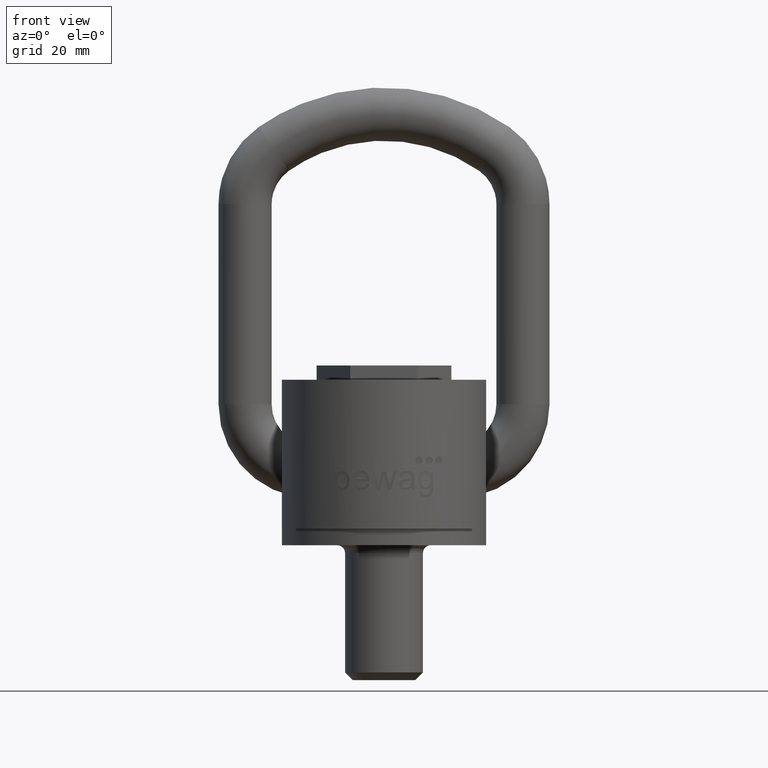
[diagram: clean part render]
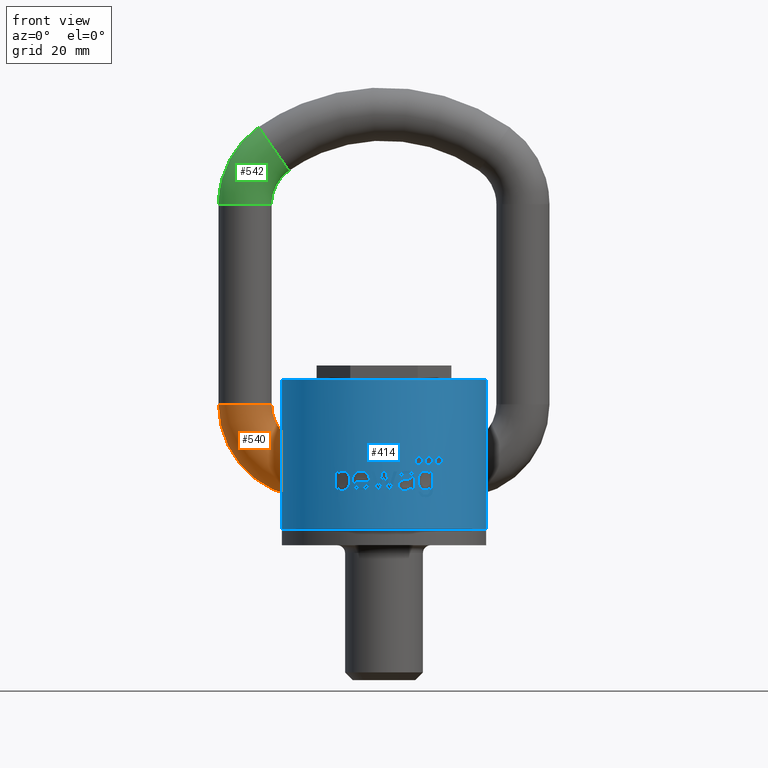
[diagram: same view with three faces highlighted in distinct colors, each labeled with its STEP entity id]
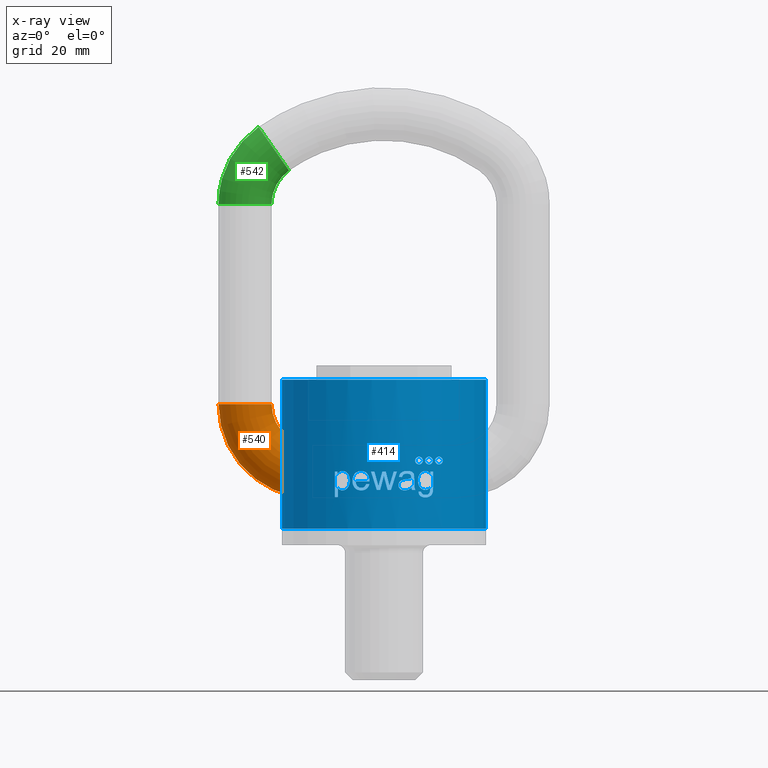
[diagram: x-ray of the same camera — body ghosted, the three highlighted faces saturated]
A machine part, front view with three faces highlighted in distinct colors.
The next image is the same camera in x-ray (body ghosted, the three faces saturated) — at least one of them is partly hidden behind the body in this view.
Their STEP definitions:

[orange] entity #540 — the highlighted toroidal blend (fillet) surface has major radius 16.5 mm and minor (blend) radius 6.5 mm.
#240=TOROIDAL_SURFACE('',#2599,16.5,6.5);
#540=ADVANCED_FACE('',(#620,#621),#240,.T.);
#620=FACE_BOUND('',#783,.T.);
#621=FACE_BOUND('',#784,.T.);
#783=EDGE_LOOP('',(#1755));
#784=EDGE_LOOP('',(#1756));
#1135=CIRCLE('',#2596,6.5);
#1136=CIRCLE('',#2598,6.5);
#1755=ORIENTED_EDGE('',*,*,#2289,.T.);
#1756=ORIENTED_EDGE('',*,*,#2288,.F.);
#1975=VERTEX_POINT('',#5281);
#1976=VERTEX_POINT('',#5284);
#2288=EDGE_CURVE('',#1975,#1975,#1135,.T.);
#2289=EDGE_CURVE('',#1976,#1976,#1136,.T.);
#2596=AXIS2_PLACEMENT_3D('',#5280,#3039,#3040);
#2598=AXIS2_PLACEMENT_3D('',#5283,#3043,#3044);
#2599=AXIS2_PLACEMENT_3D('',#5285,#3045,#3046);
#3039=DIRECTION('',(1.,0.,-1.3379888182763E-15));
#3040=DIRECTION('',(-1.60128320859398E-15,0.,-1.));
#3043=DIRECTION('',(-8.32667268468867E-16,0.,-1.));
#3044=DIRECTION('',(-1.,0.,1.06752213906265E-15));
#3045=DIRECTION('',(0.,-1.,0.));
#3046=DIRECTION('',(0.,0.,-1.));
#5280=CARTESIAN_POINT('',(-17.5,20.,14.));
#5281=CARTESIAN_POINT('',(-17.5,20.,7.49999999999999));
#5283=CARTESIAN_POINT('',(-34.,20.,30.5));
#5284=CARTESIAN_POINT('',(-40.5,20.,30.5));
#5285=CARTESIAN_POINT('',(-17.5,20.,30.5));

[blue] entity #414 — the highlighted cylindrical surface (partial cylindrical patch) has radius 25 mm, axis along (0, 0, -1).
#414=ADVANCED_FACE('',(#577,#578,#579,#580,#581,#582,#583,#584,#585),#546,
 .T.);
#546=CYLINDRICAL_SURFACE('',#2500,25.);
#564=ELLIPSE('',#2475,25.1940145104187,25.);
#565=ELLIPSE('',#2476,82.17047641211,25.);
#566=ELLIPSE('',#2478,96.4746546832225,25.);
#567=ELLIPSE('',#2480,98.2829509461815,25.);
#568=ELLIPSE('',#2482,83.8023845269046,25.);
#569=ELLIPSE('',#2484,92.7768803298747,25.);
#570=ELLIPSE('',#2485,100.913495396455,25.);
#571=ELLIPSE('',#2486,93.9639350803187,25.);
#572=ELLIPSE('',#2488,98.7868482011468,25.);
#573=ELLIPSE('',#2490,87.0223323021272,25.);
#574=ELLIPSE('',#2493,25.2827954281472,25.);
#575=ELLIPSE('',#2494,25.2141833962512,25.);
#576=ELLIPSE('',#2495,25.3446411133094,25.);
#577=FACE_BOUND('',#632,.T.);
#578=FACE_BOUND('',#633,.T.);
#579=FACE_BOUND('',#634,.T.);
#580=FACE_BOUND('',#635,.T.);
#581=FACE_BOUND('',#636,.T.);
#582=FACE_BOUND('',#637,.T.);
#583=FACE_BOUND('',#638,.T.);
#584=FACE_BOUND('',#639,.T.);
#585=FACE_BOUND('',#640,.T.);
#632=EDGE_LOOP('',(#1141,#1142,#1143,#1144,#1145,#1146,#1147,#1148,#1149,
#1150));
#633=EDGE_LOOP('',(#1151,#1152,#1153,#1154,#1155,#1156,#1157,#1158,#1159));
#634=EDGE_LOOP('',(#1160,#1161,#1162,#1163,#1164,#1165,#1166,#1167,#1168,
#1169,#1170,#1171,#1172,#1173,#1174,#1175,#1176,#1177,#1178));
#635=EDGE_LOOP('',(#1179,#1180,#1181,#1182,#1183,#1184,#1185,#1186,#1187,
#1188,#1189,#1190,#1191,#1192,#1193,#1194,#1195));
#636=EDGE_LOOP('',(#1196,#1197,#1198,#1199,#1200,#1201,#1202,#1203,#1204,
#1205,#1206));
#637=EDGE_LOOP('',(#1207));
#638=EDGE_LOOP('',(#1208,#1209,#1210,#1211));
#639=EDGE_LOOP('',(#1212));
#640=EDGE_LOOP('',(#1213));
#795=LINE('',#3120,#926);
#796=LINE('',#3124,#927);
#797=LINE('',#3128,#928);
#798=LINE('',#3684,#929);
#799=LINE('',#3749,#930);
#800=LINE('',#3753,#931);
#926=VECTOR('',#2613,1.);
#927=VECTOR('',#2616,1.);
#928=VECTOR('',#2619,1.);
#929=VECTOR('',#2668,1.);
#930=VECTOR('',#2673,1.);
#931=VECTOR('',#2676,1.);
#1102=CIRCLE('',#2470,25.);
#1103=CIRCLE('',#2471,25.);
#1104=CIRCLE('',#2472,25.);
#1105=CIRCLE('',#2473,25.);
#1106=CIRCLE('',#2474,25.);
#1107=CIRCLE('',#2477,25.);
#1108=CIRCLE('',#2479,25.);
#1109=CIRCLE('',#2481,25.);
#1110=CIRCLE('',#2483,25.);
#1111=CIRCLE('',#2487,25.);
#1112=CIRCLE('',#2489,25.);
#1113=CIRCLE('',#2491,25.);
#1114=CIRCLE('',#2492,25.);
#1115=CIRCLE('',#2496,25.);
#1116=CIRCLE('',#2497,25.);
#1117=CIRCLE('',#2498,25.);
#1118=CIRCLE('',#2499,25.);
#1141=ORIENTED_EDGE('',*,*,#1981,.F.);
#1142=ORIENTED_EDGE('',*,*,#1982,.F.);
#1143=ORIENTED_EDGE('',*,*,#1983,.F.);
#1144=ORIENTED_EDGE('',*,*,#1984,.F.);
#1145=ORIENTED_EDGE('',*,*,#1985,.F.);
#1146=ORIENTED_EDGE('',*,*,#1986,.F.);
#1147=ORIENTED_EDGE('',*,*,#1987,.F.);
#1148=ORIENTED_EDGE('',*,*,#1988,.F.);
#1149=ORIENTED_EDGE('',*,*,#1989,.F.);
#1150=ORIENTED_EDGE('',*,*,#1990,.F.);
#1151=ORIENTED_EDGE('',*,*,#1991,.F.);
#1152=ORIENTED_EDGE('',*,*,#1992,.F.);
#1153=ORIENTED_EDGE('',*,*,#1993,.F.);
#1154=ORIENTED_EDGE('',*,*,#1994,.F.);
#1155=ORIENTED_EDGE('',*,*,#1995,.F.);
#1156=ORIENTED_EDGE('',*,*,#1996,.F.);
#1157=ORIENTED_EDGE('',*,*,#1997,.F.);
#1158=ORIENTED_EDGE('',*,*,#1998,.F.);
#1159=ORIENTED_EDGE('',*,*,#1999,.F.);
#1160=ORIENTED_EDGE('',*,*,#2000,.F.);
#1161=ORIENTED_EDGE('',*,*,#2001,.F.);
#1162=ORIENTED_EDGE('',*,*,#2002,.F.);
#1163=ORIENTED_EDGE('',*,*,#2003,.F.);
#1164=ORIENTED_EDGE('',*,*,#2004,.F.);
#1165=ORIENTED_EDGE('',*,*,#2005,.F.);
#1166=ORIENTED_EDGE('',*,*,#2006,.F.);
#1167=ORIENTED_EDGE('',*,*,#2007,.F.);
#1168=ORIENTED_EDGE('',*,*,#2008,.F.);
#1169=ORIENTED_EDGE('',*,*,#2009,.F.);
#1170=ORIENTED_EDGE('',*,*,#2010,.F.);
#1171=ORIENTED_EDGE('',*,*,#2011,.F.);
#1172=ORIENTED_EDGE('',*,*,#2012,.F.);
#1173=ORIENTED_EDGE('',*,*,#2013,.F.);
#1174=ORIENTED_EDGE('',*,*,#2014,.F.);
#1175=ORIENTED_EDGE('',*,*,#2015,.F.);
#1176=ORIENTED_EDGE('',*,*,#2016,.F.);
#1177=ORIENTED_EDGE('',*,*,#2017,.F.);
#1178=ORIENTED_EDGE('',*,*,#2018,.F.);
#1179=ORIENTED_EDGE('',*,*,#2019,.F.);
#1180=ORIENTED_EDGE('',*,*,#2020,.F.);
#1181=ORIENTED_EDGE('',*,*,#2021,.F.);
#1182=ORIENTED_EDGE('',*,*,#2022,.F.);
#1183=ORIENTED_EDGE('',*,*,#2023,.F.);
#1184=ORIENTED_EDGE('',*,*,#2024,.F.);
#1185=ORIENTED_EDGE('',*,*,#2025,.F.);
#1186=ORIENTED_EDGE('',*,*,#2026,.F.);
#1187=ORIENTED_EDGE('',*,*,#2027,.F.);
#1188=ORIENTED_EDGE('',*,*,#2028,.F.);
#1189=ORIENTED_EDGE('',*,*,#2029,.F.);
#1190=ORIENTED_EDGE('',*,*,#2030,.F.);
#1191=ORIENTED_EDGE('',*,*,#2031,.F.);
#1192=ORIENTED_EDGE('',*,*,#2032,.F.);
#1193=ORIENTED_EDGE('',*,*,#2033,.F.);
#1194=ORIENTED_EDGE('',*,*,#2034,.F.);
#1195=ORIENTED_EDGE('',*,*,#2035,.F.);
#1196=ORIENTED_EDGE('',*,*,#2036,.F.);
#1197=ORIENTED_EDGE('',*,*,#2037,.F.);
#1198=ORIENTED_EDGE('',*,*,#2038,.F.);
#1199=ORIENTED_EDGE('',*,*,#2039,.F.);
#1200=ORIENTED_EDGE('',*,*,#2040,.F.);
#1201=ORIENTED_EDGE('',*,*,#2041,.F.);
#1202=ORIENTED_EDGE('',*,*,#2042,.F.);
#1203=ORIENTED_EDGE('',*,*,#2043,.F.);
#1204=ORIENTED_EDGE('',*,*,#2044,.F.);
#1205=ORIENTED_EDGE('',*,*,#2045,.F.);
#1206=ORIENTED_EDGE('',*,*,#2046,.F.);
#1207=ORIENTED_EDGE('',*,*,#2047,.T.);
#1208=ORIENTED_EDGE('',*,*,#2048,.F.);
#1209=ORIENTED_EDGE('',*,*,#2049,.F.);
#1210=ORIENTED_EDGE('',*,*,#2050,.F.);
#1211=ORIENTED_EDGE('',*,*,#2051,.F.);
#1212=ORIENTED_EDGE('',*,*,#2052,.T.);
#1213=ORIENTED_EDGE('',*,*,#2053,.T.);
#1767=VERTEX_POINT('',#3076);
#1768=VERTEX_POINT('',#3077);
#1769=VERTEX_POINT('',#3088);
#1770=VERTEX_POINT('',#3117);
#1771=VERTEX_POINT('',#3119);
#1772=VERTEX_POINT('',#3121);
#1773=VERTEX_POINT('',#3123);
#1774=VERTEX_POINT('',#3125);
#1775=VERTEX_POINT('',#3127);
#1776=VERTEX_POINT('',#3129);
#1777=VERTEX_POINT('',#3132);
#1778=VERTEX_POINT('',#3133);
#1779=VERTEX_POINT('',#3144);
#1780=VERTEX_POINT('',#3161);
#1781=VERTEX_POINT('',#3172);
#1782=VERTEX_POINT('',#3174);
#1783=VERTEX_POINT('',#3185);
#1784=VERTEX_POINT('',#3202);
#1785=VERTEX_POINT('',#3234);
#1786=VERTEX_POINT('',#3246);
#1787=VERTEX_POINT('',#3247);
#1788=VERTEX_POINT('',#3249);
#1789=VERTEX_POINT('',#3251);
#1790=VERTEX_POINT('',#3316);
#1791=VERTEX_POINT('',#3327);
#1792=VERTEX_POINT('',#3329);
#1793=VERTEX_POINT('',#3331);
#1794=VERTEX_POINT('',#3333);
#1795=VERTEX_POINT('',#3335);
#1796=VERTEX_POINT('',#3337);
#1797=VERTEX_POINT('',#3339);
#1798=VERTEX_POINT('',#3341);
#1799=VERTEX_POINT('',#3343);
#1800=VERTEX_POINT('',#3345);
#1801=VERTEX_POINT('',#3347);
#1802=VERTEX_POINT('',#3358);
#1803=VERTEX_POINT('',#3360);
#1804=VERTEX_POINT('',#3362);
#1805=VERTEX_POINT('',#3365);
#1806=VERTEX_POINT('',#3366);
#1807=VERTEX_POINT('',#3377);
#1808=VERTEX_POINT('',#3409);
#1809=VERTEX_POINT('',#3420);
#1810=VERTEX_POINT('',#3422);
#1811=VERTEX_POINT('',#3433);
#1812=VERTEX_POINT('',#3444);
#1813=VERTEX_POINT('',#3455);
#1814=VERTEX_POINT('',#3466);
#1815=VERTEX_POINT('',#3477);
#1816=VERTEX_POINT('',#3488);
#1817=VERTEX_POINT('',#3490);
#1818=VERTEX_POINT('',#3501);
#1819=VERTEX_POINT('',#3515);
#1820=VERTEX_POINT('',#3526);
#1821=VERTEX_POINT('',#3537);
#1822=VERTEX_POINT('',#3558);
#1823=VERTEX_POINT('',#3559);
#1824=VERTEX_POINT('',#3579);
#1825=VERTEX_POINT('',#3593);
#1826=VERTEX_POINT('',#3595);
#1827=VERTEX_POINT('',#3606);
#1828=VERTEX_POINT('',#3620);
#1829=VERTEX_POINT('',#3634);
#1830=VERTEX_POINT('',#3681);
#1831=VERTEX_POINT('',#3683);
#1832=VERTEX_POINT('',#3685);
#1833=VERTEX_POINT('',#3745);
#1834=VERTEX_POINT('',#3747);
#1835=VERTEX_POINT('',#3748);
#1836=VERTEX_POINT('',#3750);
#1837=VERTEX_POINT('',#3752);
#1838=VERTEX_POINT('',#3812);
#1839=VERTEX_POINT('',#3871);
#1981=EDGE_CURVE('',#1767,#1768,#2294,.T.);
#1982=EDGE_CURVE('',#1769,#1767,#2295,.T.);
#1983=EDGE_CURVE('',#1770,#1769,#2296,.T.);
#1984=EDGE_CURVE('',#1771,#1770,#1102,.T.);
#1985=EDGE_CURVE('',#1772,#1771,#795,.T.);
#1986=EDGE_CURVE('',#1773,#1772,#1103,.T.);
#1987=EDGE_CURVE('',#1774,#1773,#796,.T.);
#1988=EDGE_CURVE('',#1775,#1774,#1104,.T.);
#1989=EDGE_CURVE('',#1776,#1775,#797,.T.);
#1990=EDGE_CURVE('',#1768,#1776,#1105,.T.);
#1991=EDGE_CURVE('',#1777,#1778,#1106,.T.);
#1992=EDGE_CURVE('',#1779,#1777,#2297,.T.);
#1993=EDGE_CURVE('',#1780,#1779,#2298,.T.);
#1994=EDGE_CURVE('',#1781,#1780,#2299,.T.);
#1995=EDGE_CURVE('',#1782,#1781,#564,.T.);
#1996=EDGE_CURVE('',#1783,#1782,#2300,.T.);
#1997=EDGE_CURVE('',#1784,#1783,#2301,.T.);
#1998=EDGE_CURVE('',#1785,#1784,#2302,.T.);
#1999=EDGE_CURVE('',#1778,#1785,#2303,.T.);
#2000=EDGE_CURVE('',#1786,#1787,#565,.T.);
#2001=EDGE_CURVE('',#1788,#1786,#1107,.T.);
#2002=EDGE_CURVE('',#1789,#1788,#566,.T.);
#2003=EDGE_CURVE('',#1790,#1789,#2304,.T.);
#2004=EDGE_CURVE('',#1791,#1790,#2305,.T.);
#2005=EDGE_CURVE('',#1792,#1791,#1108,.T.);
#2006=EDGE_CURVE('',#1793,#1792,#567,.T.);
#2007=EDGE_CURVE('',#1794,#1793,#1109,.T.);
#2008=EDGE_CURVE('',#1795,#1794,#568,.T.);
#2009=EDGE_CURVE('',#1796,#1795,#1110,.T.);
#2010=EDGE_CURVE('',#1797,#1796,#569,.T.);
#2011=EDGE_CURVE('',#1798,#1797,#570,.T.);
#2012=EDGE_CURVE('',#1799,#1798,#571,.T.);
#2013=EDGE_CURVE('',#1800,#1799,#1111,.T.);
#2014=EDGE_CURVE('',#1801,#1800,#572,.T.);
#2015=EDGE_CURVE('',#1802,#1801,#2306,.T.);
#2016=EDGE_CURVE('',#1803,#1802,#1112,.T.);
#2017=EDGE_CURVE('',#1804,#1803,#573,.T.);
#2018=EDGE_CURVE('',#1787,#1804,#1113,.T.);
#2019=EDGE_CURVE('',#1805,#1806,#1114,.T.);
#2020=EDGE_CURVE('',#1807,#1805,#2307,.T.);
#2021=EDGE_CURVE('',#1808,#1807,#2308,.T.);
#2022=EDGE_CURVE('',#1809,#1808,#2309,.T.);
#2023=EDGE_CURVE('',#1810,#1809,#574,.T.);
#2024=EDGE_CURVE('',#1811,#1810,#2310,.T.);
#2025=EDGE_CURVE('',#1812,#1811,#2311,.T.);
#2026=EDGE_CURVE('',#1813,#1812,#2312,.T.);
#2027=EDGE_CURVE('',#1814,#1813,#2313,.T.);
#2028=EDGE_CURVE('',#1815,#1814,#2314,.T.);
#2029=EDGE_CURVE('',#1816,#1815,#2315,.T.);
#2030=EDGE_CURVE('',#1817,#1816,#575,.T.);
#2031=EDGE_CURVE('',#1818,#1817,#2316,.T.);
#2032=EDGE_CURVE('',#1819,#1818,#2317,.T.);
#2033=EDGE_CURVE('',#1820,#1819,#2318,.T.);
#2034=EDGE_CURVE('',#1821,#1820,#2319,.T.);
#2035=EDGE_CURVE('',#1806,#1821,#2320,.T.);
#2036=EDGE_CURVE('',#1822,#1823,#2321,.T.);
#2037=EDGE_CURVE('',#1824,#1822,#2322,.T.);
#2038=EDGE_CURVE('',#1825,#1824,#2323,.T.);
#2039=EDGE_CURVE('',#1826,#1825,#576,.T.);
#2040=EDGE_CURVE('',#1827,#1826,#2324,.T.);
#2041=EDGE_CURVE('',#1828,#1827,#2325,.T.);
#2042=EDGE_CURVE('',#1829,#1828,#2326,.T.);
#2043=EDGE_CURVE('',#1830,#1829,#2327,.T.);
#2044=EDGE_CURVE('',#1831,#1830,#1115,.T.);
#2045=EDGE_CURVE('',#1832,#1831,#798,.T.);
#2046=EDGE_CURVE('',#1823,#1832,#1116,.T.);
#2047=EDGE_CURVE('',#1833,#1833,#2328,.T.);
#2048=EDGE_CURVE('',#1834,#1835,#1117,.T.);
#2049=EDGE_CURVE('',#1836,#1834,#799,.T.);
#2050=EDGE_CURVE('',#1837,#1836,#1118,.T.);
#2051=EDGE_CURVE('',#1835,#1837,#800,.T.);
#2052=EDGE_CURVE('',#1838,#1838,#2329,.T.);
#2053=EDGE_CURVE('',#1839,#1839,#2330,.T.);
#2294=B_SPLINE_CURVE_WITH_KNOTS('',3,(#3066,#3067,#3068,#3069,#3070,#3071,
#3072,#3073,#3074,#3075),.UNSPECIFIED.,.F.,.F.,(4,3,3,4),(0.,0.391657797747273,
0.694208532104583,1.),.UNSPECIFIED.);
#2295=B_SPLINE_CURVE_WITH_KNOTS('',3,(#3078,#3079,#3080,#3081,#3082,#3083,
#3084,#3085,#3086,#3087),.UNSPECIFIED.,.F.,.F.,(4,3,3,4),(0.,0.352238037569731,
0.705837311240721,1.),.UNSPECIFIED.);
#2296=B_SPLINE_CURVE_WITH_KNOTS('',3,(#3089,#3090,#3091,#3092,#3093,#3094,
#3095,#3096,#3097,#3098,#3099,#3100,#3101,#3102,#3103,#3104,#3105,#3106,
#3107,#3108,#3109,#3110,#3111,#3112,#3113,#3114,#3115,#3116),
 .UNSPECIFIED.,.F.,.F.,(4,3,3,3,3,3,3,3,3,4),(0.,0.0905248933953095,0.168768946938946,
0.262343208688423,0.356493992292631,0.443257919153383,0.542905133014074,
0.677139243652402,0.866918457224584,1.),.UNSPECIFIED.);
#2297=B_SPLINE_CURVE_WITH_KNOTS('',3,(#3134,#3135,#3136,#3137,#3138,#3139,
#3140,#3141,#3142,#3143),.UNSPECIFIED.,.F.,.F.,(4,3,3,4),(0.,0.247240170800062,
0.663841143719336,1.),.UNSPECIFIED.);
#2298=B_SPLINE_CURVE_WITH_KNOTS('',3,(#3145,#3146,#3147,#3148,#3149,#3150,
#3151,#3152,#3153,#3154,#3155,#3156,#3157,#3158,#3159,#3160),
 .UNSPECIFIED.,.F.,.F.,(4,3,3,3,3,4),(0.,0.198766169573324,0.395634693446517,
0.634969042155886,0.906976755550919,1.),.UNSPECIFIED.);
#2299=B_SPLINE_CURVE_WITH_KNOTS('',3,(#3162,#3163,#3164,#3165,#3166,#3167,
#3168,#3169,#3170,#3171),.UNSPECIFIED.,.F.,.F.,(4,3,3,4),(0.,0.291582744666725,
0.583827807706864,1.),.UNSPECIFIED.);
#2300=B_SPLINE_CURVE_WITH_KNOTS('',3,(#3175,#3176,#3177,#3178,#3179,#3180,
#3181,#3182,#3183,#3184),.UNSPECIFIED.,.F.,.F.,(4,3,3,4),(0.,0.279743626133199,
0.746666449623462,1.),.UNSPECIFIED.);
#2301=B_SPLINE_CURVE_WITH_KNOTS('',3,(#3186,#3187,#3188,#3189,#3190,#3191,
#3192,#3193,#3194,#3195,#3196,#3197,#3198,#3199,#3200,#3201),
 .UNSPECIFIED.,.F.,.F.,(4,3,3,3,3,4),(0.,0.203862272098564,0.406656114901401,
0.720007632425519,0.924503863407851,1.),.UNSPECIFIED.);
#2302=B_SPLINE_CURVE_WITH_KNOTS('',3,(#3203,#3204,#3205,#3206,#3207,#3208,
#3209,#3210,#3211,#3212,#3213,#3214,#3215,#3216,#3217,#3218,#3219,#3220,
#3221,#3222,#3223,#3224,#3225,#3226,#3227,#3228,#3229,#3230,#3231,#3232,
#3233),.UNSPECIFIED.,.F.,.F.,(4,3,3,3,3,3,3,3,3,3,4),(0.,0.103512007964934,
0.193899697201353,0.278195108082372,0.377585673179041,0.459701063740597,
0.541736966606869,0.628790824986068,0.758833824520313,0.895694136286066,
1.),.UNSPECIFIED.);
#2303=B_SPLINE_CURVE_WITH_KNOTS('',3,(#3235,#3236,#3237,#3238,#3239,#3240,
#3241,#3242,#3243,#3244),.UNSPECIFIED.,.F.,.F.,(4,3,3,4),(0.,0.326762048751425,
0.655781069521526,1.),.UNSPECIFIED.);
#2304=B_SPLINE_CURVE_WITH_KNOTS('',3,(#3252,#3253,#3254,#3255,#3256,#3257,
#3258,#3259,#3260,#3261,#3262,#3263,#3264,#3265,#3266,#3267,#3268,#3269,
#3270,#3271,#3272,#3273,#3274,#3275,#3276,#3277,#3278,#3279,#3280,#3281,
#3282,#3283,#3284,#3285,#3286,#3287,#3288,#3289,#3290,#3291,#3292,#3293,
#3294,#3295,#3296,#3297,#3298,#3299,#3300,#3301,#3302,#3303,#3304,#3305,
#3306,#3307,#3308,#3309,#3310,#3311,#3312,#3313,#3314,#3315),
 .UNSPECIFIED.,.F.,.F.,(4,3,3,3,3,3,3,3,3,3,3,3,3,3,3,3,3,3,3,3,3,4),(0.,
0.49955331586537,0.749371457656851,0.834029702780475,0.889946163444652,
0.926899980438457,0.951339488322283,0.967517620447605,0.978239999313545,
0.985357926739089,0.990093338017958,0.993253012252914,0.995369807962058,
0.996795785888198,0.997763616319151,0.998427273489924,0.998888982388753,
0.999371387681453,0.999590041215974,0.999773233095601,0.999908554340488,
1.),.UNSPECIFIED.);
#2305=B_SPLINE_CURVE_WITH_KNOTS('',3,(#3317,#3318,#3319,#3320,#3321,#3322,
#3323,#3324,#3325,#3326),.UNSPECIFIED.,.F.,.F.,(4,3,3,4),(0.,0.133710786362463,
0.662259428205781,1.),.UNSPECIFIED.);
#2306=B_SPLINE_CURVE_WITH_KNOTS('',3,(#3348,#3349,#3350,#3351,#3352,#3353,
#3354,#3355,#3356,#3357),.UNSPECIFIED.,.F.,.F.,(4,3,3,4),(0.,0.284451124598518,
0.642221045653079,1.),.UNSPECIFIED.);
#2307=B_SPLINE_CURVE_WITH_KNOTS('',3,(#3367,#3368,#3369,#3370,#3371,#3372,
#3373,#3374,#3375,#3376),.UNSPECIFIED.,.F.,.F.,(4,3,3,4),(0.,0.29810777247678,
0.596459384136433,1.),.UNSPECIFIED.);
#2308=B_SPLINE_CURVE_WITH_KNOTS('',3,(#3378,#3379,#3380,#3381,#3382,#3383,
#3384,#3385,#3386,#3387,#3388,#3389,#3390,#3391,#3392,#3393,#3394,#3395,
#3396,#3397,#3398,#3399,#3400,#3401,#3402,#3403,#3404,#3405,#3406,#3407,
#3408),.UNSPECIFIED.,.F.,.F.,(4,3,3,3,3,3,3,3,3,3,4),(0.,0.0780122411292465,
0.156314956137167,0.252221628366131,0.327487061806898,0.402822724376452,
0.479618288086518,0.589759700125942,0.751045473062072,0.909884427350094,
1.),.UNSPECIFIED.);
#2309=B_SPLINE_CURVE_WITH_KNOTS('',3,(#3410,#3411,#3412,#3413,#3414,#3415,
#3416,#3417,#3418,#3419),.UNSPECIFIED.,.F.,.F.,(4,3,3,4),(0.,0.336609162967315,
0.658853350552494,1.),.UNSPECIFIED.);
#2310=B_SPLINE_CURVE_WITH_KNOTS('',3,(#3423,#3424,#3425,#3426,#3427,#3428,
#3429,#3430,#3431,#3432),.UNSPECIFIED.,.F.,.F.,(4,3,3,4),(0.,0.296612768273009,
0.593035536686829,1.),.UNSPECIFIED.);
#2311=B_SPLINE_CURVE_WITH_KNOTS('',3,(#3434,#3435,#3436,#3437,#3438,#3439,
#3440,#3441,#3442,#3443),.UNSPECIFIED.,.F.,.F.,(4,3,3,4),(0.,0.354196373045436,
0.676989757518124,1.),.UNSPECIFIED.);
#2312=B_SPLINE_CURVE_WITH_KNOTS('',3,(#3445,#3446,#3447,#3448,#3449,#3450,
#3451,#3452,#3453,#3454),.UNSPECIFIED.,.F.,.F.,(4,3,3,4),(0.,0.284062316983153,
0.568435846295656,1.),.UNSPECIFIED.);
#2313=B_SPLINE_CURVE_WITH_KNOTS('',3,(#3456,#3457,#3458,#3459,#3460,#3461,
#3462,#3463,#3464,#3465),.UNSPECIFIED.,.F.,.F.,(4,3,3,4),(0.,0.294807138526088,
0.590298925498023,1.),.UNSPECIFIED.);
#2314=B_SPLINE_CURVE_WITH_KNOTS('',3,(#3467,#3468,#3469,#3470,#3471,#3472,
#3473,#3474,#3475,#3476),.UNSPECIFIED.,.F.,.F.,(4,3,3,4),(0.,0.278855867610479,
0.735722394139011,1.),.UNSPECIFIED.);
#2315=B_SPLINE_CURVE_WITH_KNOTS('',3,(#3478,#3479,#3480,#3481,#3482,#3483,
#3484,#3485,#3486,#3487),.UNSPECIFIED.,.F.,.F.,(4,3,3,4),(0.,0.324752376652681,
0.768673925460952,1.),.UNSPECIFIED.);
#2316=B_SPLINE_CURVE_WITH_KNOTS('',3,(#3491,#3492,#3493,#3494,#3495,#3496,
#3497,#3498,#3499,#3500),.UNSPECIFIED.,.F.,.F.,(4,3,3,4),(0.,0.276746719904187,
0.659623398338791,1.),.UNSPECIFIED.);
#2317=B_SPLINE_CURVE_WITH_KNOTS('',3,(#3502,#3503,#3504,#3505,#3506,#3507,
#3508,#3509,#3510,#3511,#3512,#3513,#3514),.UNSPECIFIED.,.F.,.F.,(4,3,3,
3,4),(0.,0.169752759976954,0.616422555181207,0.880352645211539,1.),
 .UNSPECIFIED.);
#2318=B_SPLINE_CURVE_WITH_KNOTS('',3,(#3516,#3517,#3518,#3519,#3520,#3521,
#3522,#3523,#3524,#3525),.UNSPECIFIED.,.F.,.F.,(4,3,3,4),(0.,0.260453290197951,
0.651117404602184,1.),.UNSPECIFIED.);
#2319=B_SPLINE_CURVE_WITH_KNOTS('',3,(#3527,#3528,#3529,#3530,#3531,#3532,
#3533,#3534,#3535,#3536),.UNSPECIFIED.,.F.,.F.,(4,3,3,4),(0.,0.285271385879739,
0.64160722957972,1.),.UNSPECIFIED.);
#2320=B_SPLINE_CURVE_WITH_KNOTS('',3,(#3538,#3539,#3540,#3541,#3542,#3543,
#3544,#3545,#3546,#3547),.UNSPECIFIED.,.F.,.F.,(4,3,3,4),(0.,0.264702455054184,
0.529532191004718,1.),.UNSPECIFIED.);
#2321=B_SPLINE_CURVE_WITH_KNOTS('',3,(#3548,#3549,#3550,#3551,#3552,#3553,
#3554,#3555,#3556,#3557),.UNSPECIFIED.,.F.,.F.,(4,3,3,4),(0.,0.146567078125605,
0.470503150225421,1.),.UNSPECIFIED.);
#2322=B_SPLINE_CURVE_WITH_KNOTS('',3,(#3560,#3561,#3562,#3563,#3564,#3565,
#3566,#3567,#3568,#3569,#3570,#3571,#3572,#3573,#3574,#3575,#3576,#3577,
#3578),.UNSPECIFIED.,.F.,.F.,(4,3,3,3,3,3,4),(0.,0.191184255901713,0.449337348737316,
0.671797294418068,0.828129636679727,0.957888930864527,1.),.UNSPECIFIED.);
#2323=B_SPLINE_CURVE_WITH_KNOTS('',3,(#3580,#3581,#3582,#3583,#3584,#3585,
#3586,#3587,#3588,#3589,#3590,#3591,#3592),.UNSPECIFIED.,.F.,.F.,(4,3,3,
3,4),(0.,0.401043475483824,0.633320924333609,0.866741825314162,1.),
 .UNSPECIFIED.);
#2324=B_SPLINE_CURVE_WITH_KNOTS('',3,(#3596,#3597,#3598,#3599,#3600,#3601,
#3602,#3603,#3604,#3605),.UNSPECIFIED.,.F.,.F.,(4,3,3,4),(0.,0.256741034386145,
0.614734922507581,1.),.UNSPECIFIED.);
#2325=B_SPLINE_CURVE_WITH_KNOTS('',3,(#3607,#3608,#3609,#3610,#3611,#3612,
#3613,#3614,#3615,#3616,#3617,#3618,#3619),.UNSPECIFIED.,.F.,.F.,(4,3,3,
3,4),(0.,0.199350171071176,0.498071015390856,0.843112996930421,1.),
 .UNSPECIFIED.);
#2326=B_SPLINE_CURVE_WITH_KNOTS('',3,(#3621,#3622,#3623,#3624,#3625,#3626,
#3627,#3628,#3629,#3630,#3631,#3632,#3633),.UNSPECIFIED.,.F.,.F.,(4,3,3,
3,4),(0.,0.368966348729243,0.743470048428434,0.957910841717718,1.),
 .UNSPECIFIED.);
#2327=B_SPLINE_CURVE_WITH_KNOTS('',3,(#3635,#3636,#3637,#3638,#3639,#3640,
#3641,#3642,#3643,#3644,#3645,#3646,#3647,#3648,#3649,#3650,#3651,#3652,
#3653,#3654,#3655,#3656,#3657,#3658,#3659,#3660,#3661,#3662,#3663,#3664,
#3665,#3666,#3667,#3668,#3669,#3670,#3671,#3672,#3673,#3674,#3675,#3676,
#3677,#3678,#3679,#3680),.UNSPECIFIED.,.F.,.F.,(4,3,3,3,3,3,3,3,3,3,3,3,
3,3,3,4),(0.,0.0693455366971931,0.131181607699315,0.203672485315945,0.260879031244601,
0.318211849546147,0.394648743714362,0.490824651035637,0.590098287636912,
0.666939584909756,0.731168834752845,0.796085378360993,0.866356182898306,
0.922400773229937,0.978520980007998,1.),.UNSPECIFIED.);
#2328=B_SPLINE_CURVE_WITH_KNOTS('',3,(#3687,#3688,#3689,#3690,#3691,#3692,
#3693,#3694,#3695,#3696,#3697,#3698,#3699,#3700,#3701,#3702,#3703,#3704,
#3705,#3706,#3707,#3708,#3709,#3710,#3711,#3712,#3713,#3714,#3715,#3716,
#3717,#3718,#3719,#3720,#3721,#3722,#3723,#3724,#3725,#3726,#3727,#3728,
#3729,#3730,#3731,#3732,#3733,#3734,#3735,#3736,#3737,#3738,#3739,#3740,
#3741,#3742,#3743,#3744),.UNSPECIFIED.,.T.,.F.,(1,3,3,3,3,3,3,3,3,3,3,3,
3,3,3,3,3,3,3,3,3,1),(-0.0367073868415174,0.,0.0609914840100628,0.122231249399369,
0.179301292083766,0.230755369736955,0.278391120314942,0.32487818972659,
0.372681240418362,0.42379249121521,0.479527479500676,0.539959743675108,
0.603004205015672,0.664124531326778,0.718757726555896,0.766536662648829,
0.811206380762681,0.857057487616174,0.907225610016425,0.963292613158483,
1.,1.06099148401006),.UNSPECIFIED.);
#2329=B_SPLINE_CURVE_WITH_KNOTS('',3,(#3754,#3755,#3756,#3757,#3758,#3759,
#3760,#3761,#3762,#3763,#3764,#3765,#3766,#3767,#3768,#3769,#3770,#3771,
#3772,#3773,#3774,#3775,#3776,#3777,#3778,#3779,#3780,#3781,#3782,#3783,
#3784,#3785,#3786,#3787,#3788,#3789,#3790,#3791,#3792,#3793,#3794,#3795,
#3796,#3797,#3798,#3799,#3800,#3801,#3802,#3803,#3804,#3805,#3806,#3807,
#3808,#3809,#3810,#3811),.UNSPECIFIED.,.T.,.F.,(1,3,3,3,3,3,3,3,3,3,3,3,
3,3,3,3,3,3,3,3,3,1),(-0.0367197482967931,0.,0.0576245706939572,0.115380338516387,
0.170999496159535,0.223565690324239,0.273920264410147,0.323453498183323,
0.373593188642525,0.425570256117128,0.480210313262632,0.537583476956381,
0.596550106951982,0.654679211305301,0.709389457177727,0.759995746809844,
0.808271178746387,0.8569514090148,0.908279432979367,0.963280251703207,1.,
1.05762457069396),.UNSPECIFIED.);
#2330=B_SPLINE_CURVE_WITH_KNOTS('',3,(#3813,#3814,#3815,#3816,#3817,#3818,
#3819,#3820,#3821,#3822,#3823,#3824,#3825,#3826,#3827,#3828,#3829,#3830,
#3831,#3832,#3833,#3834,#3835,#3836,#3837,#3838,#3839,#3840,#3841,#3842,
#3843,#3844,#3845,#3846,#3847,#3848,#3849,#3850,#3851,#3852,#3853,#3854,
#3855,#3856,#3857,#3858,#3859,#3860,#3861,#3862,#3863,#3864,#3865,#3866,
#3867,#3868,#3869,#3870),.UNSPECIFIED.,.T.,.F.,(1,3,3,3,3,3,3,3,3,3,3,3,
3,3,3,3,3,3,3,3,3,1),(-0.0659954067426743,0.,0.0748415571720548,0.141559223989639,
0.189406139175089,0.237532672015934,0.281312267162051,0.323847856577257,
0.368697963810672,0.418673756299006,0.475805103754144,0.540469776596688,
0.609516497803681,0.662909236118809,0.707889954346456,0.753174917817908,
0.793903464076126,0.834776206969872,0.880423710865825,0.934004593257326,
1.,1.07484155717205),.UNSPECIFIED.);
#2470=AXIS2_PLACEMENT_3D('',#3118,#2611,#2612);
#2471=AXIS2_PLACEMENT_3D('',#3122,#2614,#2615);
#2472=AXIS2_PLACEMENT_3D('',#3126,#2617,#2618);
#2473=AXIS2_PLACEMENT_3D('',#3130,#2620,#2621);
#2474=AXIS2_PLACEMENT_3D('',#3131,#2622,#2623);
#2475=AXIS2_PLACEMENT_3D('',#3173,#2624,#2625);
#2476=AXIS2_PLACEMENT_3D('',#3245,#2626,#2627);
#2477=AXIS2_PLACEMENT_3D('',#3248,#2628,#2629);
#2478=AXIS2_PLACEMENT_3D('',#3250,#2630,#2631);
#2479=AXIS2_PLACEMENT_3D('',#3328,#2632,#2633);
#2480=AXIS2_PLACEMENT_3D('',#3330,#2634,#2635);
#2481=AXIS2_PLACEMENT_3D('',#3332,#2636,#2637);
#2482=AXIS2_PLACEMENT_3D('',#3334,#2638,#2639);
#2483=AXIS2_PLACEMENT_3D('',#3336,#2640,#2641);
#2484=AXIS2_PLACEMENT_3D('',#3338,#2642,#2643);
#2485=AXIS2_PLACEMENT_3D('',#3340,#2644,#2645);
#2486=AXIS2_PLACEMENT_3D('',#3342,#2646,#2647);
#2487=AXIS2_PLACEMENT_3D('',#3344,#2648,#2649);
#2488=AXIS2_PLACEMENT_3D('',#3346,#2650,#2651);
#2489=AXIS2_PLACEMENT_3D('',#3359,#2652,#2653);
#2490=AXIS2_PLACEMENT_3D('',#3361,#2654,#2655);
#2491=AXIS2_PLACEMENT_3D('',#3363,#2656,#2657);
#2492=AXIS2_PLACEMENT_3D('',#3364,#2658,#2659);
#2493=AXIS2_PLACEMENT_3D('',#3421,#2660,#2661);
#2494=AXIS2_PLACEMENT_3D('',#3489,#2662,#2663);
#2495=AXIS2_PLACEMENT_3D('',#3594,#2664,#2665);
#2496=AXIS2_PLACEMENT_3D('',#3682,#2666,#2667);
#2497=AXIS2_PLACEMENT_3D('',#3686,#2669,#2670);
#2498=AXIS2_PLACEMENT_3D('',#3746,#2671,#2672);
#2499=AXIS2_PLACEMENT_3D('',#3751,#2674,#2675);
#2500=AXIS2_PLACEMENT_3D('',#3872,#2677,#2678);
#2611=DIRECTION('',(0.,0.,1.));
#2612=DIRECTION('',(-1.,0.,0.));
#2613=DIRECTION('',(0.,-1.90106682298828E-16,1.));
#2614=DIRECTION('',(0.,0.,1.));
#2615=DIRECTION('',(-1.,0.,0.));
#2616=DIRECTION('',(0.,1.90106682298828E-16,-1.));
#2617=DIRECTION('',(0.,0.,-1.));
#2618=DIRECTION('',(1.,0.,0.));
#2619=DIRECTION('',(0.,-1.90106682298828E-16,1.));
#2620=DIRECTION('',(0.,0.,-1.));
#2621=DIRECTION('',(1.,0.,0.));
#2622=DIRECTION('',(0.,0.,1.));
#2623=DIRECTION('',(-1.,0.,0.));
#2624=DIRECTION('',(-0.123864170013732,0.,-0.992299182397532));
#2625=DIRECTION('',(0.992299182397532,1.53479962993134E-15,-0.123864170013732));
#2626=DIRECTION('',(-0.952593648183112,1.23259516440783E-32,0.304245528218887));
#2627=DIRECTION('',(-0.304245528218887,1.99567446897657E-16,-0.952593648183112));
#2628=DIRECTION('',(0.,0.,1.));
#2629=DIRECTION('',(-1.,0.,0.));
#2630=DIRECTION('',(0.965840998800877,0.,0.259135418334362));
#2631=DIRECTION('',(0.259135418334362,1.96830205525394E-16,-0.965840998800877));
#2632=DIRECTION('',(0.,0.,1.));
#2633=DIRECTION('',(-1.,0.,0.));
#2634=DIRECTION('',(-0.96710760287855,-6.16297582203915E-33,0.254367616756742));
#2635=DIRECTION('',(-0.254367616756742,1.96572420414217E-16,-0.96710760287855));
#2636=DIRECTION('',(0.,0.,1.));
#2637=DIRECTION('',(-1.,0.,0.));
#2638=DIRECTION('',(0.954465641275027,0.,0.298320866895784));
#2639=DIRECTION('',(0.298320866895784,1.99176035341485E-16,-0.954465641275027));
#2640=DIRECTION('',(0.,0.,-1.));
#2641=DIRECTION('',(1.,0.,0.));
#2642=DIRECTION('',(-0.963010551756509,0.,-0.269463684391098));
#2643=DIRECTION('',(0.269463684391098,1.97408722004217E-16,-0.963010551756509));
#2644=DIRECTION('',(0.968827338219047,0.,-0.247736934507951));
#2645=DIRECTION('',(-0.247736934507951,1.96223490811369E-16,-0.968827338219047));
#2646=DIRECTION('',(0.963956601090742,0.,-0.266059525696007));
#2647=DIRECTION('',(-0.266059525696007,1.97214980512315E-16,-0.963956601090742));
#2648=DIRECTION('',(0.,0.,-1.));
#2649=DIRECTION('',(1.,0.,0.));
#2650=DIRECTION('',(-0.967447937590639,-6.16297582203915E-33,-0.25307012477102));
#2651=DIRECTION('',(0.25307012477102,1.96503268974117E-16,-0.967447937590639));
#2652=DIRECTION('',(0.,0.,-1.));
#2653=DIRECTION('',(1.,0.,0.));
#2654=DIRECTION('',(0.957845874951684,6.16297582203915E-33,-0.287282578375447));
#2655=DIRECTION('',(-0.287282578375447,1.98473144031046E-16,-0.957845874951683));
#2656=DIRECTION('',(0.,0.,-1.));
#2657=DIRECTION('',(1.,0.,0.));
#2658=DIRECTION('',(0.,0.,1.));
#2659=DIRECTION('',(-1.,0.,0.));
#2660=DIRECTION('',(0.149149158822094,-2.46519032881566E-32,-0.988814708842188));
#2661=DIRECTION('',(-0.988814708842188,1.27460780738018E-15,-0.149149158822094));
#2662=DIRECTION('',(0.130065224599902,-2.46519032881566E-32,0.991505439899236));
#2663=DIRECTION('',(0.991505439899236,1.46162575648965E-15,-0.130065224599902));
#2664=DIRECTION('',(-0.164351632031852,0.,-0.986401815209434));
#2665=DIRECTION('',(0.986401815209434,1.15670699431804E-15,-0.164351632031852));
#2666=DIRECTION('',(0.,0.,-1.));
#2667=DIRECTION('',(1.,0.,0.));
#2668=DIRECTION('',(0.,1.90106682298828E-16,-1.));
#2669=DIRECTION('',(0.,0.,-1.));
#2670=DIRECTION('',(1.,0.,0.));
#2671=DIRECTION('',(0.,1.45752356053354E-16,-1.));
#2672=DIRECTION('',(0.,-1.,-1.45752356053354E-16));
#2673=DIRECTION('',(0.,1.90106682298828E-16,-1.));
#2674=DIRECTION('',(0.,0.,1.));
#2675=DIRECTION('',(-1.,0.,0.));
#2676=DIRECTION('',(0.,-1.90106682298828E-16,1.));
#2677=DIRECTION('',(0.,1.90106682298828E-16,-1.));
#2678=DIRECTION('',(0.,1.,2.77555756156289E-16));
#3066=CARTESIAN_POINT('',(-10.1546788825303,-30.8447476850302,14.1505436172934));
#3067=CARTESIAN_POINT('',(-10.3398445774059,-30.762440005495,14.1505436172934));
#3068=CARTESIAN_POINT('',(-10.5277401786975,-30.676045142663,14.1217743513143));
#3069=CARTESIAN_POINT('',(-10.7000198266619,-30.594458960308,14.0530407611619));
#3070=CARTESIAN_POINT('',(-10.8335172738126,-30.5312387993902,13.9997799208522));
#3071=CARTESIAN_POINT('',(-10.9602521995189,-30.4697055512604,13.9207893050296));
#3072=CARTESIAN_POINT('',(-11.0693170805012,-30.4158475050872,13.821495615142));
#3073=CARTESIAN_POINT('',(-11.1797328952877,-30.3613223454074,13.720972022457));
#3074=CARTESIAN_POINT('',(-11.2747889936256,-30.3133739305505,13.5978429528692));
#3075=CARTESIAN_POINT('',(-11.3520666539238,-30.2739889262088,13.4646265029419));
#3076=CARTESIAN_POINT('',(-10.1546788825303,-30.8447476850302,14.1505436172934));
#3077=CARTESIAN_POINT('',(-11.3520666539238,-30.2739889262088,13.4646265029419));
#3078=CARTESIAN_POINT('',(-8.85059319091368,-31.3809110209366,13.5045983627526));
#3079=CARTESIAN_POINT('',(-8.96002497563639,-31.3394867920915,13.6516374845623));
#3080=CARTESIAN_POINT('',(-9.0917321706923,-31.2887417474713,13.7833556607438));
#3081=CARTESIAN_POINT('',(-9.23890553041256,-31.2302093102949,13.8844780695977));
#3082=CARTESIAN_POINT('',(-9.38651059170646,-31.1715051807329,13.9858970994101));
#3083=CARTESIAN_POINT('',(-9.55311513268175,-31.103501008325,14.0585537831981));
#3084=CARTESIAN_POINT('',(-9.7224094264877,-31.0320375769002,14.1004067234657));
#3085=CARTESIAN_POINT('',(-9.86426524107661,-30.9721566261004,14.1354763220986));
#3086=CARTESIAN_POINT('',(-10.010373322845,-30.9088926972567,14.1505436172934));
#3087=CARTESIAN_POINT('',(-10.1546788825303,-30.8447476850302,14.1505436172934));
#3088=CARTESIAN_POINT('',(-8.85059319091368,-31.3809110209366,13.5045983627526));
#3089=CARTESIAN_POINT('',(-11.2853804537843,-30.3078503673784,9.99826682015861));
#3090=CARTESIAN_POINT('',(-11.1753168484644,-30.3635307507275,9.84123093740092));
#3091=CARTESIAN_POINT('',(-11.0378518650616,-30.4320322426692,9.70190904250386));
#3092=CARTESIAN_POINT('',(-10.8812800414273,-30.5077263325294,9.60377525839501));
#3093=CARTESIAN_POINT('',(-10.7454436577563,-30.573395947874,9.51863772828334));
#3094=CARTESIAN_POINT('',(-10.5918174785126,-30.6460316007683,9.46242508761426));
#3095=CARTESIAN_POINT('',(-10.4361540436286,-30.717541433387,9.43658598118971));
#3096=CARTESIAN_POINT('',(-10.2498305691739,-30.80313610423,9.40565750984113));
#3097=CARTESIAN_POINT('',(-10.0550599752893,-30.8896766190305,9.41253508593967));
#3098=CARTESIAN_POINT('',(-9.86782477834345,-30.9701117573233,9.4509098784743));
#3099=CARTESIAN_POINT('',(-9.68000262540696,-31.050799048454,9.4894049705826));
#3100=CARTESIAN_POINT('',(-9.49452955359871,-31.1275892957716,9.56604931546449));
#3101=CARTESIAN_POINT('',(-9.32992719894885,-31.1938021562295,9.67463750153392));
#3102=CARTESIAN_POINT('',(-9.1774844320851,-31.2551237070155,9.77520400660217));
#3103=CARTESIAN_POINT('',(-9.03910737385239,-31.3090321361821,9.90436505649793));
#3104=CARTESIAN_POINT('',(-8.91932220352664,-31.3547787707287,10.0481409588572));
#3105=CARTESIAN_POINT('',(-8.78217155711721,-31.4071573788823,10.2127603177732));
#3106=CARTESIAN_POINT('',(-8.66879939907747,-31.4490878694886,10.4038156951567));
#3107=CARTESIAN_POINT('',(-8.585827297571,-31.479428647569,10.6059256139871));
#3108=CARTESIAN_POINT('',(-8.47437278189502,-31.520184716956,10.8774152196204));
#3109=CARTESIAN_POINT('',(-8.41306433688604,-31.5419001048623,11.1744575606139));
#3110=CARTESIAN_POINT('',(-8.38792625006385,-31.5508533438491,11.4695468493485));
#3111=CARTESIAN_POINT('',(-8.35250087853923,-31.5634705258846,11.8853958262538));
#3112=CARTESIAN_POINT('',(-8.37390176415407,-31.5561172848956,12.3164892319294));
#3113=CARTESIAN_POINT('',(-8.48071328839236,-31.5175998375703,12.7183004144079));
#3114=CARTESIAN_POINT('',(-8.55571923301163,-31.4905518430626,13.0004631072007));
#3115=CARTESIAN_POINT('',(-8.68032667940082,-31.4453635833747,13.2747539519186));
#3116=CARTESIAN_POINT('',(-8.85059319091368,-31.3809110209366,13.5045983627526));
#3117=CARTESIAN_POINT('',(-11.2853804537843,-30.3078503673784,9.99826682015861));
#3118=CARTESIAN_POINT('',(0.,-8.00000000000001,9.99826682015861));
#3119=CARTESIAN_POINT('',(-11.3046453560468,-30.29809394038,9.99826682015861));
#3120=CARTESIAN_POINT('',(-11.3046453560468,-30.29809394038,36.5));
#3121=CARTESIAN_POINT('',(-11.3046453560468,-30.29809394038,7.78542466103863));
#3122=CARTESIAN_POINT('',(0.,-8.00000000000001,7.78542466103863));
#3123=CARTESIAN_POINT('',(-12.0159648242014,-29.9229694463035,7.78542466103863));
#3124=CARTESIAN_POINT('',(-12.0159648242014,-29.9229694463035,36.5));
#3125=CARTESIAN_POINT('',(-12.0159648242014,-29.9229694463035,14.0482156561781));
#3126=CARTESIAN_POINT('',(0.,-8.00000000000001,14.0482156561781));
#3127=CARTESIAN_POINT('',(-11.368367725069,-30.2656734743778,14.0482156561781));
#3128=CARTESIAN_POINT('',(-11.368367725069,-30.2656734743778,36.5));
#3129=CARTESIAN_POINT('',(-11.368367725069,-30.2656734743778,13.4646265029419));
#3130=CARTESIAN_POINT('',(0.,-8.00000000000001,13.4646265029419));
#3131=CARTESIAN_POINT('',(0.,-8.00000000000001,11.5923445894091));
#3132=CARTESIAN_POINT('',(-6.93421106533471,-32.0190906759892,11.5923445894091));
#3133=CARTESIAN_POINT('',(-3.57428237502583,-32.7431708861977,11.5923445894091));
#3134=CARTESIAN_POINT('',(-6.50946536297491,-32.1376647728862,10.4459516500384));
#3135=CARTESIAN_POINT('',(-6.57974085849081,-32.118712819239,10.5195233657546));
#3136=CARTESIAN_POINT('',(-6.64138030974175,-32.1017616785232,10.6027694768657));
#3137=CARTESIAN_POINT('',(-6.69280288098553,-32.0874737072253,10.6914384805443));
#3138=CARTESIAN_POINT('',(-6.77884716224098,-32.0635659524945,10.83980641522));
#3139=CARTESIAN_POINT('',(-6.83811853617838,-32.0466569818526,11.0061485397757));
#3140=CARTESIAN_POINT('',(-6.87629972365021,-32.0357338583728,11.1747045405875));
#3141=CARTESIAN_POINT('',(-6.90731162874378,-32.0268617700197,11.3116107775657));
#3142=CARTESIAN_POINT('',(-6.92532154470561,-32.0216570434318,11.4519944554086));
#3143=CARTESIAN_POINT('',(-6.93421106533471,-32.0190906759892,11.5923445894091));
#3144=CARTESIAN_POINT('',(-6.50946536297491,-32.1376647728862,10.4459516500384));
#3145=CARTESIAN_POINT('',(-4.83425563389166,-32.5281465354842,10.2812675876183));
#3146=CARTESIAN_POINT('',(-4.93023906452288,-32.5092291484889,10.2055204083078));
#3147=CARTESIAN_POINT('',(-5.04137083885154,-32.4867001645653,10.1471372838171));
#3148=CARTESIAN_POINT('',(-5.15675397353531,-32.4623769993113,10.1096748022849));
#3149=CARTESIAN_POINT('',(-5.27153100849789,-32.4381816019822,10.0724091086081));
#3150=CARTESIAN_POINT('',(-5.39279430520942,-32.4117369754413,10.0541894417777));
#3151=CARTESIAN_POINT('',(-5.51278077038851,-32.3846108883787,10.0502727459209));
#3152=CARTESIAN_POINT('',(-5.65838118983982,-32.3516940952346,10.0455199385208));
#3153=CARTESIAN_POINT('',(-5.80634910409003,-32.31680580469,10.0603657404004));
#3154=CARTESIAN_POINT('',(-5.94621144325555,-32.2825568973306,10.1000031598586));
#3155=CARTESIAN_POINT('',(-6.10393935727416,-32.2439331423766,10.1447037384812));
#3156=CARTESIAN_POINT('',(-6.25520640139051,-32.2051620953207,10.2240050911623));
#3157=CARTESIAN_POINT('',(-6.38303337213679,-32.1714063506902,10.3283547260005));
#3158=CARTESIAN_POINT('',(-6.42754106326475,-32.159653038795,10.364687913665));
#3159=CARTESIAN_POINT('',(-6.46976507355757,-32.1483711797111,10.4041373545285));
#3160=CARTESIAN_POINT('',(-6.50946536297491,-32.1376647728862,10.4459516500384));
#3161=CARTESIAN_POINT('',(-4.83425563389166,-32.5281465354842,10.2812675876183));
#3162=CARTESIAN_POINT('',(-4.38098223510471,-32.6131467849135,10.9831734458941));
#3163=CARTESIAN_POINT('',(-4.40720615711334,-32.6084790950216,10.9046082987804));
#3164=CARTESIAN_POINT('',(-4.43757302030845,-32.6030332592423,10.8272621549799));
#3165=CARTESIAN_POINT('',(-4.47304488710936,-32.5965824747648,10.7525487170941));
#3166=CARTESIAN_POINT('',(-4.50856337135401,-32.5901232126087,10.6777370901418));
#3167=CARTESIAN_POINT('',(-4.54943079662591,-32.5826149781614,10.6051714609478));
#3168=CARTESIAN_POINT('',(-4.59636348239922,-32.5738365490142,10.5371984773021));
#3169=CARTESIAN_POINT('',(-4.66273090296001,-32.5614229892643,10.4410780120432));
#3170=CARTESIAN_POINT('',(-4.74285705039528,-32.5461602943534,10.3528195145345));
#3171=CARTESIAN_POINT('',(-4.83425563389166,-32.5281465354842,10.2812675876183));
#3172=CARTESIAN_POINT('',(-4.38098223510471,-32.6131467849135,10.9831734458941));
#3173=CARTESIAN_POINT('',(0.,-8.00000000000001,10.4363154639243));
#3174=CARTESIAN_POINT('',(-3.59964032740552,-32.7394945282501,10.885642107956));
#3175=CARTESIAN_POINT('',(-4.29698401784699,-32.627950145117,9.79840752110514));
#3176=CARTESIAN_POINT('',(-4.19914059731213,-32.6450214649716,9.87162744245829));
#3177=CARTESIAN_POINT('',(-4.10823670394674,-32.6602731613124,9.95572504162185));
#3178=CARTESIAN_POINT('',(-4.02756575634232,-32.6734414721242,10.0481626724302));
#3179=CARTESIAN_POINT('',(-3.89403830462695,-32.6952378069674,10.2011664693482));
#3180=CARTESIAN_POINT('',(-3.78664154628497,-32.7116924605775,10.3803349984466));
#3181=CARTESIAN_POINT('',(-3.70753565051015,-32.7235551529345,10.5682614633982));
#3182=CARTESIAN_POINT('',(-3.66420835225115,-32.7300524993696,10.6711911618483));
#3183=CARTESIAN_POINT('',(-3.62856824717078,-32.7352854646229,10.7776631639457));
#3184=CARTESIAN_POINT('',(-3.59964032740552,-32.7394945282501,10.885642107956));
#3185=CARTESIAN_POINT('',(-4.29698401784699,-32.627950145117,9.79840752110514));
#3186=CARTESIAN_POINT('',(-7.14341417246715,-31.9577051063034,10.0430353031466));
#3187=CARTESIAN_POINT('',(-7.00215717056829,-31.9998233836946,9.88741267751007));
#3188=CARTESIAN_POINT('',(-6.83245732388947,-32.0489927882048,9.75525012501014));
#3189=CARTESIAN_POINT('',(-6.64821814379161,-32.0998173335932,9.6582002327444));
#3190=CARTESIAN_POINT('',(-6.46444955676537,-32.1505120603464,9.56139823024282));
#3191=CARTESIAN_POINT('',(-6.26265575894799,-32.2037909507963,9.49653662717858));
#3192=CARTESIAN_POINT('',(-6.05833036687968,-32.2548270075411,9.45968650296462));
#3193=CARTESIAN_POINT('',(-5.74414457683752,-32.3333038118515,9.40302303460115));
#3194=CARTESIAN_POINT('',(-5.41379298219708,-32.4089246901768,9.400335627246));
#3195=CARTESIAN_POINT('',(-5.09692615122812,-32.4749125393519,9.45798181809237));
#3196=CARTESIAN_POINT('',(-4.88930997520811,-32.5181488252947,9.49575251712402));
#3197=CARTESIAN_POINT('',(-4.68301774197134,-32.5581967978186,9.56464447578143));
#3198=CARTESIAN_POINT('',(-4.49719423682739,-32.5921785126135,9.66815943445046));
#3199=CARTESIAN_POINT('',(-4.42774654071688,-32.6048784764881,9.70684601173233));
#3200=CARTESIAN_POINT('',(-4.36067669732328,-32.6168373068925,9.75044221857312));
#3201=CARTESIAN_POINT('',(-4.29698401784699,-32.627950145117,9.79840752110514));
#3202=CARTESIAN_POINT('',(-7.14341417246715,-31.9577051063034,10.0430353031466));
#3203=CARTESIAN_POINT('',(-3.89125677977195,-32.6953056404224,13.1928178562292));
#3204=CARTESIAN_POINT('',(-4.025621200679,-32.6741337435677,13.4150000676104));
#3205=CARTESIAN_POINT('',(-4.19750925267106,-32.6459942597639,13.6219533121673));
#3206=CARTESIAN_POINT('',(-4.4042645688081,-32.608991316345,13.7760636729603));
#3207=CARTESIAN_POINT('',(-4.58536902590267,-32.5765791002821,13.9110545101756));
#3208=CARTESIAN_POINT('',(-4.79771351746307,-32.536303153211,14.0049781345808));
#3209=CARTESIAN_POINT('',(-5.01286088167211,-32.492268694039,14.0669820081779));
#3210=CARTESIAN_POINT('',(-5.21410621737633,-32.4510795790749,14.1249794203372));
#3211=CARTESIAN_POINT('',(-5.42523091750706,-32.4051721208767,14.1522152438536));
#3212=CARTESIAN_POINT('',(-5.63318219201284,-32.3570781989875,14.1504347214203));
#3213=CARTESIAN_POINT('',(-5.87824833702641,-32.3004005370496,14.1483364136803));
#3214=CARTESIAN_POINT('',(-6.12615936625736,-32.2389640947802,14.1149965413748));
#3215=CARTESIAN_POINT('',(-6.35748029943557,-32.1781398011156,14.0371171033717));
#3216=CARTESIAN_POINT('',(-6.54860465037832,-32.1278849301513,13.9727707563479));
#3217=CARTESIAN_POINT('',(-6.73200537588395,-32.0771153933231,13.8755837730164));
#3218=CARTESIAN_POINT('',(-6.89107009606258,-32.0315033431359,13.749836098579));
#3219=CARTESIAN_POINT('',(-7.05014996209415,-31.9858869498524,13.624076450677));
#3220=CARTESIAN_POINT('',(-7.18824712415435,-31.9445834756031,13.467167282939));
#3221=CARTESIAN_POINT('',(-7.30130722434024,-31.9100588208351,13.2962046843615));
#3222=CARTESIAN_POINT('',(-7.42133449517295,-31.8734066324731,13.1147067546056));
#3223=CARTESIAN_POINT('',(-7.51487222798105,-31.8438956009511,12.9118626484537));
#3224=CARTESIAN_POINT('',(-7.579937251738,-31.8231935571139,12.7020308223991));
#3225=CARTESIAN_POINT('',(-7.67665852901258,-31.7924192945915,12.3901089778045));
#3226=CARTESIAN_POINT('',(-7.71414683275885,-31.7800744811986,12.0558576012944));
#3227=CARTESIAN_POINT('',(-7.71231990358707,-31.7806669735046,11.7278429535584));
#3228=CARTESIAN_POINT('',(-7.71040255864142,-31.7812887885952,11.3835946725331));
#3229=CARTESIAN_POINT('',(-7.66356186392443,-31.7967506025849,11.0310958453365));
#3230=CARTESIAN_POINT('',(-7.54479242968171,-31.834347215584,10.7101733343853));
#3231=CARTESIAN_POINT('',(-7.45413820978613,-31.8630439223073,10.4652199079191));
#3232=CARTESIAN_POINT('',(-7.31692492011405,-31.9059698032635,10.2334594312647));
#3233=CARTESIAN_POINT('',(-7.14341417246715,-31.9577051063034,10.0430353031466));
#3234=CARTESIAN_POINT('',(-3.89125677977195,-32.6953056404224,13.1928178562292));
#3235=CARTESIAN_POINT('',(-3.57428237502583,-32.7431708861977,11.5923445894091));
#3236=CARTESIAN_POINT('',(-3.57428237502583,-32.7431708861977,11.7723840398546));
#3237=CARTESIAN_POINT('',(-3.58076838795683,-32.7422386758832,11.9526960125916));
#3238=CARTESIAN_POINT('',(-3.59723680291169,-32.7398441261011,12.1319646968534));
#3239=CARTESIAN_POINT('',(-3.61379940523693,-32.7374358812337,12.3122586677628));
#3240=CARTESIAN_POINT('',(-3.6403633154135,-32.7335742111071,12.4924260509399));
#3241=CARTESIAN_POINT('',(-3.68390910705996,-32.7270866397746,12.6680612149404));
#3242=CARTESIAN_POINT('',(-3.72921235360145,-32.7203372379973,12.850784799361));
#3243=CARTESIAN_POINT('',(-3.7937728160346,-32.7106662575509,13.0323598395066));
#3244=CARTESIAN_POINT('',(-3.89125677977195,-32.6953056404224,13.1928178562292));
#3245=CARTESIAN_POINT('',(0.,-8.00000000000001,4.19952481462486));
#3246=CARTESIAN_POINT('',(1.7008847517316,-32.9420727098076,9.525));
#3247=CARTESIAN_POINT('',(3.14553865970863,-32.8013222740296,14.0482156561781));
#3248=CARTESIAN_POINT('',(0.,-8.00000000000001,9.525));
#3249=CARTESIAN_POINT('',(0.890707222257996,-32.9841277743334,9.525));
#3250=CARTESIAN_POINT('',(0.,-8.00000000000001,12.8448146309541));
#3251=CARTESIAN_POINT('',(0.161872818233547,-32.9994759383215,12.2414875927347));
#3252=CARTESIAN_POINT('',(0.07076851773049,-32.9998998361373,12.6076298286007));
#3253=CARTESIAN_POINT('',(0.0850229823019618,-32.9998594852825,12.546389460661));
#3254=CARTESIAN_POINT('',(0.0993899860079743,-32.9998067367441,12.4851746018951));
#3255=CARTESIAN_POINT('',(0.114061025262243,-32.9997398002962,12.4240327162478));
#3256=CARTESIAN_POINT('',(0.121397769114223,-32.9997063264868,12.3934566714396));
#3257=CARTESIAN_POINT('',(0.128804435571435,-32.999669343801,12.3628968049973));
#3258=CARTESIAN_POINT('',(0.136412344685792,-32.9996278306741,12.3323871107588));
#3259=CARTESIAN_POINT('',(0.138990531588137,-32.9996137626039,12.3220479107371));
#3260=CARTESIAN_POINT('',(0.141593093717473,-32.9995991649027,12.311714692465));
#3261=CARTESIAN_POINT('',(0.144240688047735,-32.9995838890153,12.3013930494944));
#3262=CARTESIAN_POINT('',(0.145989414701874,-32.9995737993459,12.2945756409621));
#3263=CARTESIAN_POINT('',(0.14775746822706,-32.9995634158873,12.2877630963902));
#3264=CARTESIAN_POINT('',(0.14956142747759,-32.9995526235853,12.2809600955555));
#3265=CARTESIAN_POINT('',(0.150753620104713,-32.9995454912164,12.2764641583911));
#3266=CARTESIAN_POINT('',(0.151961243920122,-32.9995381819148,12.2719722216268));
#3267=CARTESIAN_POINT('',(0.153197614650047,-32.9995306054107,12.2674882328744));
#3268=CARTESIAN_POINT('',(0.154015291976189,-32.999525594668,12.2645227340602));
#3269=CARTESIAN_POINT('',(0.154845347218169,-32.999520468327,12.2615605581884));
#3270=CARTESIAN_POINT('',(0.155698473788619,-32.9995151550038,12.2586050630763));
#3271=CARTESIAN_POINT('',(0.15626321501201,-32.9995116377617,12.2566486242744));
#3272=CARTESIAN_POINT('',(0.156837915508514,-32.9995080395637,12.2546949713628));
#3273=CARTESIAN_POINT('',(0.157431155790938,-32.9995043037094,12.2527469852703));
#3274=CARTESIAN_POINT('',(0.157824337697427,-32.9995018276971,12.2514559183817));
#3275=CARTESIAN_POINT('',(0.158225549695089,-32.9994992919575,12.2501672088324));
#3276=CARTESIAN_POINT('',(0.158641667599268,-32.9994966513588,12.2488833510637));
#3277=CARTESIAN_POINT('',(0.158917902756984,-32.9994948984273,12.248031076625));
#3278=CARTESIAN_POINT('',(0.159200623052166,-32.9994930998305,12.2471808164561));
#3279=CARTESIAN_POINT('',(0.159495328641021,-32.9994912196257,12.2463347516036));
#3280=CARTESIAN_POINT('',(0.159691390299132,-32.9994899687635,12.2457718817968));
#3281=CARTESIAN_POINT('',(0.159892697812298,-32.9994886821648,12.2452107516963));
#3282=CARTESIAN_POINT('',(0.160103642118105,-32.999487331219,12.2446532888432));
#3283=CARTESIAN_POINT('',(0.160244393445136,-32.9994864298085,12.2442813250869));
#3284=CARTESIAN_POINT('',(0.160389397048371,-32.9994854999988,12.2439108823731));
#3285=CARTESIAN_POINT('',(0.160542151080654,-32.9994845190401,12.2435436848406));
#3286=CARTESIAN_POINT('',(0.160644487239952,-32.9994838618559,12.2432976842302));
#3287=CARTESIAN_POINT('',(0.160750281281942,-32.9994831818504,12.2430530326838));
#3288=CARTESIAN_POINT('',(0.160862314534613,-32.9994824609583,12.2428112942873));
#3289=CARTESIAN_POINT('',(0.160937785457315,-32.9994819753312,12.2426484478163));
#3290=CARTESIAN_POINT('',(0.161016082486606,-32.999481471185,12.2424868187558));
#3291=CARTESIAN_POINT('',(0.161099412459873,-32.9994809341975,12.2423278505315));
#3292=CARTESIAN_POINT('',(0.16115596915254,-32.9994805697399,12.2422199575771));
#3293=CARTESIAN_POINT('',(0.161214853595086,-32.9994801900949,12.2421131869759));
#3294=CARTESIAN_POINT('',(0.161277810971647,-32.9994797839413,12.2420088994613));
#3295=CARTESIAN_POINT('',(0.161320980846714,-32.9994795054418,12.2419373895093));
#3296=CARTESIAN_POINT('',(0.161366090616809,-32.9994792143185,12.2418669429155));
#3297=CARTESIAN_POINT('',(0.161414509369207,-32.9994789016924,12.2417988773912));
#3298=CARTESIAN_POINT('',(0.161448192370656,-32.9994786842109,12.2417515269116));
#3299=CARTESIAN_POINT('',(0.161483520788216,-32.999478456039,12.2417052211875));
#3300=CARTESIAN_POINT('',(0.161521544639139,-32.999478210367,12.241661280475));
#3301=CARTESIAN_POINT('',(0.161561163978261,-32.9994779543866,12.2416154960016));
#3302=CARTESIAN_POINT('',(0.161603865046952,-32.9994776784067,12.2415715188131));
#3303=CARTESIAN_POINT('',(0.161652343039269,-32.9994773649369,12.2415352453854));
#3304=CARTESIAN_POINT('',(0.161674384491611,-32.9994772224118,12.2415187529732));
#3305=CARTESIAN_POINT('',(0.161697875511176,-32.9994770704846,12.2415037841437));
#3306=CARTESIAN_POINT('',(0.161722923603305,-32.9994769084472,12.2414923643181));
#3307=CARTESIAN_POINT('',(0.161743832103635,-32.999476773189,12.2414828317985));
#3308=CARTESIAN_POINT('',(0.161766297120925,-32.9994766278344,12.2414756801607));
#3309=CARTESIAN_POINT('',(0.161789141038042,-32.9994764799954,12.2414731929526));
#3310=CARTESIAN_POINT('',(0.161806047904917,-32.9994763705792,12.2414713521608));
#3311=CARTESIAN_POINT('',(0.161823509108912,-32.9994762575574,12.2414721352886));
#3312=CARTESIAN_POINT('',(0.161840088141597,-32.999476150229,12.2414759256435));
#3313=CARTESIAN_POINT('',(0.161851379256648,-32.9994760771333,12.2414785070566));
#3314=CARTESIAN_POINT('',(0.161862423030433,-32.999476005631,12.2414824845513));
#3315=CARTESIAN_POINT('',(0.161872818233547,-32.9994759383215,12.2414875927347));
#3316=CARTESIAN_POINT('',(0.07076851773049,-32.9998998361373,12.6076298286007));
#3317=CARTESIAN_POINT('',(-0.0154551952456164,-32.9999952227384,13.0073484267076));
#3318=CARTESIAN_POINT('',(-0.0154551952456164,-32.9999952227384,12.9891242691915));
#3319=CARTESIAN_POINT('',(-0.0105726369036944,-32.9999980024371,12.9712092818493));
#3320=CARTESIAN_POINT('',(-0.00712263534018092,-32.9999989853613,12.953314662395));
#3321=CARTESIAN_POINT('',(0.00652034147966903,-33.0000028723194,12.8825506717355));
#3322=CARTESIAN_POINT('',(0.0227883890306905,-32.9999949049168,12.8123096020843));
#3323=CARTESIAN_POINT('',(0.0390535633473054,-32.9999694963652,12.7421019339524));
#3324=CARTESIAN_POINT('',(0.0494476680172597,-32.9999532592724,12.6972363925822));
#3325=CARTESIAN_POINT('',(0.0600456677793756,-32.9999301898668,12.6524179302076));
#3326=CARTESIAN_POINT('',(0.07076851773049,-32.9998998361373,12.6076298286007));
#3327=CARTESIAN_POINT('',(-0.0154551952456164,-32.9999952227384,13.0073484267076));
#3328=CARTESIAN_POINT('',(0.,-8.00000000000001,13.0073484267076));
#3329=CARTESIAN_POINT('',(-0.0333506828444312,-32.9999777546292,13.0073484267076));
#3330=CARTESIAN_POINT('',(0.,-8.00000000000001,13.1341479751379));
#3331=CARTESIAN_POINT('',(-0.949274275401941,-32.9819710661521,9.525));
#3332=CARTESIAN_POINT('',(0.,-8.00000000000001,9.525));
#3333=CARTESIAN_POINT('',(-1.7643323924025,-32.9376649109158,9.525));
#3334=CARTESIAN_POINT('',(0.,-8.00000000000001,3.88008931755336));
#3335=CARTESIAN_POINT('',(-3.17807591270885,-32.7971739013352,14.0482156561781));
#3336=CARTESIAN_POINT('',(0.,-8.00000000000001,14.0482156561781));
#3337=CARTESIAN_POINT('',(-2.36789838323524,-32.8876085079839,14.0482156561781));
#3338=CARTESIAN_POINT('',(0.,-8.00000000000001,5.58580954867049));
#3339=CARTESIAN_POINT('',(-1.36575107770163,-32.9626666042263,10.4667370171399));
#3340=CARTESIAN_POINT('',(0.,-8.00000000000001,15.8077935855015));
#3341=CARTESIAN_POINT('',(-1.20957227683924,-32.9707215535936,11.0775070350473));
#3342=CARTESIAN_POINT('',(0.,-8.00000000000001,15.4598916826384));
#3343=CARTESIAN_POINT('',(-0.389633572311739,-32.9969635291835,14.0482156561781));
#3344=CARTESIAN_POINT('',(0.,-8.00000000000001,14.0482156561781));
#3345=CARTESIAN_POINT('',(0.414036507125934,-32.9965712402875,14.0482156561781));
#3346=CARTESIAN_POINT('',(0.,-8.00000000000001,15.6310131723552));
#3347=CARTESIAN_POINT('',(1.03387112304851,-32.9786130619962,11.6786838066002));
#3348=CARTESIAN_POINT('',(1.32019892462955,-32.9651171597373,10.5658672294705));
#3349=CARTESIAN_POINT('',(1.29847246504964,-32.9662660928021,10.6726306457659));
#3350=CARTESIAN_POINT('',(1.2694432261473,-32.967764113482,10.7777816868918));
#3351=CARTESIAN_POINT('',(1.24244090038804,-32.9691077255284,10.8833319368319));
#3352=CARTESIAN_POINT('',(1.20847704211574,-32.9707977373269,11.0160943426162));
#3353=CARTESIAN_POINT('',(1.17387213131165,-32.9724496135994,11.1486932178747));
#3354=CARTESIAN_POINT('',(1.13904453831301,-32.974038070359,11.2812329167174));
#3355=CARTESIAN_POINT('',(1.10421598914541,-32.9756265707286,11.4137762543514));
#3356=CARTESIAN_POINT('',(1.06912379605144,-32.9771539449292,11.5462511537337));
#3357=CARTESIAN_POINT('',(1.03387112304851,-32.9786130619962,11.6786838066002));
#3358=CARTESIAN_POINT('',(1.32019892462955,-32.9651171597373,10.5658672294705));
#3359=CARTESIAN_POINT('',(0.,-8.00000000000001,10.5658672294704));
#3360=CARTESIAN_POINT('',(1.33809441222836,-32.9641643830504,10.5658672294704));
#3361=CARTESIAN_POINT('',(0.,-8.00000000000001,6.10444732612425));
#3362=CARTESIAN_POINT('',(2.38254014299554,-32.8862110910242,14.0482156561781));
#3363=CARTESIAN_POINT('',(0.,-8.00000000000001,14.0482156561781));
#3364=CARTESIAN_POINT('',(0.,-8.00000000000001,9.525));
#3365=CARTESIAN_POINT('',(6.87905991208825,-32.0349440341745,9.525));
#3366=CARTESIAN_POINT('',(7.67803967936756,-31.791757116322,9.525));
#3367=CARTESIAN_POINT('',(6.72211745780125,-32.0793093107656,10.0830071629573));
#3368=CARTESIAN_POINT('',(6.72965034368719,-32.0772063873359,10.0254261393187));
#3369=CARTESIAN_POINT('',(6.7388967945487,-32.0746217440244,9.96803896579717));
#3370=CARTESIAN_POINT('',(6.75037561568536,-32.0714027228818,9.91116528552077));
#3371=CARTESIAN_POINT('',(6.76185982344095,-32.0681821911624,9.85426491636765));
#3372=CARTESIAN_POINT('',(6.77559628489207,-32.0643220723079,9.79776432620193));
#3373=CARTESIAN_POINT('',(6.79231563056513,-32.0596019995091,9.74228374171393));
#3374=CARTESIAN_POINT('',(6.81486756755143,-32.0532353158833,9.66744859745627));
#3375=CARTESIAN_POINT('',(6.84300116492511,-32.0452644360751,9.59386711403802));
#3376=CARTESIAN_POINT('',(6.87905991208825,-32.0349440341745,9.525));
#3377=CARTESIAN_POINT('',(6.72211745780125,-32.0793093107656,10.0830071629573));
#3378=CARTESIAN_POINT('',(3.93361465890382,-32.6885940408776,11.6499040675365));
#3379=CARTESIAN_POINT('',(3.83527042645176,-32.7042631516318,11.5590815582394));
#3380=CARTESIAN_POINT('',(3.74881979861692,-32.7174139811342,11.4517473885116));
#3381=CARTESIAN_POINT('',(3.68469119593138,-32.7269701093892,11.3335863119517));
#3382=CARTESIAN_POINT('',(3.62038114343631,-32.7365532764004,11.215090902443));
#3383=CARTESIAN_POINT('',(3.57726407677541,-32.7427491821048,11.0829437273723));
#3384=CARTESIAN_POINT('',(3.55614181866934,-32.7457845978969,10.949476808325));
#3385=CARTESIAN_POINT('',(3.53028857414107,-32.7494998894308,10.7861158230914));
#3386=CARTESIAN_POINT('',(3.53247036214636,-32.7491934693072,10.6158302389699));
#3387=CARTESIAN_POINT('',(3.56256142648933,-32.7448612055609,10.4532117760641));
#3388=CARTESIAN_POINT('',(3.58621238422346,-32.7414561353516,10.3253970085591));
#3389=CARTESIAN_POINT('',(3.63020726107767,-32.7351117901056,10.1993457336477));
#3390=CARTESIAN_POINT('',(3.69399755477369,-32.7255815313882,10.0864406863904));
#3391=CARTESIAN_POINT('',(3.75786521744244,-32.7160397137599,9.97339870062703));
#3392=CARTESIAN_POINT('',(3.84290813688602,-32.7030685822849,9.8710210160035));
#3393=CARTESIAN_POINT('',(3.939362508844,-32.6876775542763,9.78494961802027));
#3394=CARTESIAN_POINT('',(4.03777482983259,-32.671974100322,9.69713103733474));
#3395=CARTESIAN_POINT('',(4.15114670284827,-32.6532488828588,9.62466307055561));
#3396=CARTESIAN_POINT('',(4.27060584192107,-32.6325379476608,9.57040205547765));
#3397=CARTESIAN_POINT('',(4.44124520238032,-32.6029537671274,9.49289383816889));
#3398=CARTESIAN_POINT('',(4.62793812481761,-32.5686349711458,9.44961851518796));
#3399=CARTESIAN_POINT('',(4.81318049621941,-32.5322908329168,9.43051599493569));
#3400=CARTESIAN_POINT('',(5.08355592425035,-32.4792437797199,9.4026344036421));
#3401=CARTESIAN_POINT('',(5.36174495487858,-32.4197475121754,9.42016214845984));
#3402=CARTESIAN_POINT('',(5.62388016123265,-32.3592276546711,9.48586394072017));
#3403=CARTESIAN_POINT('',(5.88245076699954,-32.299530766056,9.5506722984414));
#3404=CARTESIAN_POINT('',(6.13114980282262,-32.2376343578352,9.66350758400575));
#3405=CARTESIAN_POINT('',(6.35572134507795,-32.1786022380063,9.80740140300112));
#3406=CARTESIAN_POINT('',(6.48427147366234,-32.1448108389786,9.88976967080827));
#3407=CARTESIAN_POINT('',(6.60654796238947,-32.1115723508998,9.98273596210463));
#3408=CARTESIAN_POINT('',(6.72211745780125,-32.0793093107656,10.0830071629573));
#3409=CARTESIAN_POINT('',(3.93361465890382,-32.6885940408776,11.6499040675365));
#3410=CARTESIAN_POINT('',(5.30646481458612,-32.430338335184,12.1343630084421));
#3411=CARTESIAN_POINT('',(5.14293775306337,-32.4658577203966,12.1142985742696));
#3412=CARTESIAN_POINT('',(4.97948980271117,-32.4996272485251,12.0878079120406));
#3413=CARTESIAN_POINT('',(4.81809227959677,-32.5313266413639,12.0510479321576));
#3414=CARTESIAN_POINT('',(4.66378467320693,-32.5616335341749,12.015902755223));
#3415=CARTESIAN_POINT('',(4.51037499625615,-32.5902176450941,11.9713330704208));
#3416=CARTESIAN_POINT('',(4.3633799674932,-32.6162733828514,11.9106858227315));
#3417=CARTESIAN_POINT('',(4.20894457587014,-32.6436479689067,11.8469688281734));
#3418=CARTESIAN_POINT('',(4.05747609838125,-32.6688592931964,11.7636071769378));
#3419=CARTESIAN_POINT('',(3.93361465890382,-32.6885940408776,11.6499040675365));
#3420=CARTESIAN_POINT('',(5.30646481458612,-32.430338335184,12.1343630084421));
#3421=CARTESIAN_POINT('',(0.,-8.00000000000001,11.3339554534803));
#3422=CARTESIAN_POINT('',(6.01666905216773,-32.2651951056794,12.2414875927347));
#3423=CARTESIAN_POINT('',(6.67138858368827,-32.0934135058824,12.3981772831926));
#3424=CARTESIAN_POINT('',(6.60879156610602,-32.1107464183968,12.3755880830892));
#3425=CARTESIAN_POINT('',(6.54511666019741,-32.1281136271834,12.3559185489427));
#3426=CARTESIAN_POINT('',(6.48091144910626,-32.1453471043355,12.3383177943644));
#3427=CARTESIAN_POINT('',(6.41673258694147,-32.1625735091081,12.3207242628911));
#3428=CARTESIAN_POINT('',(6.35193984344576,-32.1796896146433,12.3051929000894));
#3429=CARTESIAN_POINT('',(6.28680007520219,-32.1966143254472,12.2912081770949));
#3430=CARTESIAN_POINT('',(6.19737567211805,-32.2198487059466,12.2720098357466));
#3431=CARTESIAN_POINT('',(6.10721682589014,-32.2427433600608,12.2557057644618));
#3432=CARTESIAN_POINT('',(6.01666905216773,-32.2651951056794,12.2414875927347));
#3433=CARTESIAN_POINT('',(6.67138858368827,-32.0934135058824,12.3981772831926));
#3434=CARTESIAN_POINT('',(6.65077997857988,-32.0991104747981,12.8858339728831));
#3435=CARTESIAN_POINT('',(6.6584552230744,-32.0969922902921,12.8287435388092));
#3436=CARTESIAN_POINT('',(6.66207183846061,-32.09599152046,12.7710944134581));
#3437=CARTESIAN_POINT('',(6.66488755995692,-32.0952126741627,12.7135255081594));
#3438=CARTESIAN_POINT('',(6.66745475237219,-32.0945025725743,12.6610379104934));
#3439=CARTESIAN_POINT('',(6.66900638707775,-32.0940730235106,12.6084943098791));
#3440=CARTESIAN_POINT('',(6.66999541707303,-32.0937992258636,12.5559491913196));
#3441=CARTESIAN_POINT('',(6.67098515662657,-32.0935252317863,12.5033663753973));
#3442=CARTESIAN_POINT('',(6.67138858368827,-32.0934135058824,12.4507701266931));
#3443=CARTESIAN_POINT('',(6.67138858368827,-32.0934135058824,12.3981772831926));
#3444=CARTESIAN_POINT('',(6.65077997857988,-32.0991104747981,12.8858339728831));
#3445=CARTESIAN_POINT('',(6.52554307061348,-32.1333231784098,13.1832246098746));
#3446=CARTESIAN_POINT('',(6.54254943843105,-32.1287247323173,13.157695704834));
#3447=CARTESIAN_POINT('',(6.5586009037618,-32.1243650001356,13.1314399389172));
#3448=CARTESIAN_POINT('',(6.57331153984566,-32.1203560380052,13.1044285958549));
#3449=CARTESIAN_POINT('',(6.58803150141268,-32.1163445344817,13.0774001295477));
#3450=CARTESIAN_POINT('',(6.60144931302393,-32.1126732424371,13.0495355736496));
#3451=CARTESIAN_POINT('',(6.61301901819504,-32.1094997763328,13.0209107862248));
#3452=CARTESIAN_POINT('',(6.63049441488141,-32.1047064321444,12.9776746356132));
#3453=CARTESIAN_POINT('',(6.64388931513122,-32.1010121336394,12.9321657417729));
#3454=CARTESIAN_POINT('',(6.65077997857988,-32.0991104747981,12.8858339728831));
#3455=CARTESIAN_POINT('',(6.52554307061348,-32.1333231784098,13.1832246098746));
#3456=CARTESIAN_POINT('',(6.19422011156313,-32.2204797064284,13.4294512663085));
#3457=CARTESIAN_POINT('',(6.23213611655174,-32.2107829504806,13.4139157730319));
#3458=CARTESIAN_POINT('',(6.26936401634219,-32.2011662404973,13.3963960084218));
#3459=CARTESIAN_POINT('',(6.30521456142083,-32.1918223648911,13.3763851996482));
#3460=CARTESIAN_POINT('',(6.34111306522562,-32.1824659896041,13.3563476216052));
#3461=CARTESIAN_POINT('',(6.37581205240308,-32.1733352777667,13.3336906170403));
#3462=CARTESIAN_POINT('',(6.40812827026768,-32.1647655083139,13.3080007361099));
#3463=CARTESIAN_POINT('',(6.45263237123021,-32.1529636976395,13.2726220584617));
#3464=CARTESIAN_POINT('',(6.49321111265375,-32.1420655957993,13.2306562786466));
#3465=CARTESIAN_POINT('',(6.52554307061348,-32.1333231784098,13.1832246098746));
#3466=CARTESIAN_POINT('',(6.19422011156313,-32.2204797064284,13.4294512663085));
#3467=CARTESIAN_POINT('',(4.80551718272053,-32.533793114938,13.3399143003326));
#3468=CARTESIAN_POINT('',(4.91791361174898,-32.5117776455631,13.4126539314235));
#3469=CARTESIAN_POINT('',(5.0477593401683,-32.4854607774213,13.4587109269087));
#3470=CARTESIAN_POINT('',(5.17778297950042,-32.4579345697301,13.4860029254864));
#3471=CARTESIAN_POINT('',(5.39087297821083,-32.4128230839143,13.5307305763319));
#3472=CARTESIAN_POINT('',(5.61268696220935,-32.3628149881144,13.5336235607315));
#3473=CARTESIAN_POINT('',(5.82796751231607,-32.3112071826018,13.5127938797692));
#3474=CARTESIAN_POINT('',(5.95267370929218,-32.2813121774257,13.5007278092592));
#3475=CARTESIAN_POINT('',(6.0786425544663,-32.2500378670136,13.4780216317037));
#3476=CARTESIAN_POINT('',(6.19422011156313,-32.2204797064284,13.4294512663085));
#3477=CARTESIAN_POINT('',(4.80551718272053,-32.533793114938,13.3399143003326));
#3478=CARTESIAN_POINT('',(4.41395368566103,-32.6072552890573,12.6587938091584));
#3479=CARTESIAN_POINT('',(4.43196669871933,-32.6040241848791,12.7446765950879));
#3480=CARTESIAN_POINT('',(4.45533055205255,-32.5998176344761,12.8297957509353));
#3481=CARTESIAN_POINT('',(4.48640848775528,-32.5941484683044,12.9117273325143));
#3482=CARTESIAN_POINT('',(4.52846235141998,-32.5864770983795,13.0225950424715));
#3483=CARTESIAN_POINT('',(4.58629796881661,-32.5758462466632,13.1305400633289));
#3484=CARTESIAN_POINT('',(4.6645719198986,-32.5609806156858,13.2186946325495));
#3485=CARTESIAN_POINT('',(4.70582671436444,-32.5531455882967,13.2651570709999));
#3486=CARTESIAN_POINT('',(4.75344363323766,-32.5439929375106,13.3066515137519));
#3487=CARTESIAN_POINT('',(4.80551718272053,-32.533793114938,13.3399143003326));
#3488=CARTESIAN_POINT('',(4.41395368566103,-32.6072552890573,12.6587938091584));
#3489=CARTESIAN_POINT('',(0.,-8.00000000000001,13.2378142102541));
#3490=CARTESIAN_POINT('',(3.67045862444278,-32.7290867903822,12.7563251470964));
#3491=CARTESIAN_POINT('',(4.29981371890684,-32.6274562629335,13.8003901253518));
#3492=CARTESIAN_POINT('',(4.20509684646093,-32.6439932898682,13.7353584639053));
#3493=CARTESIAN_POINT('',(4.11709987114438,-32.6587814407891,13.6584318410535));
#3494=CARTESIAN_POINT('',(4.04057269090684,-32.6713147669414,13.5720583347178));
#3495=CARTESIAN_POINT('',(3.93539595085534,-32.6885402074007,13.4533490892575));
#3496=CARTESIAN_POINT('',(3.85019422527973,-32.7018199961184,13.3140239537072));
#3497=CARTESIAN_POINT('',(3.78841249329456,-32.7112915643972,13.1672450233668));
#3498=CARTESIAN_POINT('',(3.73317743035867,-32.7197594828769,13.0360194459265));
#3499=CARTESIAN_POINT('',(3.69495057143738,-32.7254515296531,12.8967875954849));
#3500=CARTESIAN_POINT('',(3.67045862444278,-32.7290867903822,12.7563251470964));
#3501=CARTESIAN_POINT('',(4.29981371890684,-32.6274562629335,13.8003901253518));
#3502=CARTESIAN_POINT('',(6.88064518940428,-32.0344902541645,13.9091135840368));
#3503=CARTESIAN_POINT('',(6.75323934680845,-32.0709642708251,13.9907384902888));
#3504=CARTESIAN_POINT('',(6.60697078157173,-32.1116355180057,14.0414411175194));
#3505=CARTESIAN_POINT('',(6.46036811116886,-32.1508518248983,14.0760094013068));
#3506=CARTESIAN_POINT('',(6.07716669636457,-32.2533584452985,14.1663666589083));
#3507=CARTESIAN_POINT('',(5.67046216635126,-32.3517857626962,14.1723169760618));
#3508=CARTESIAN_POINT('',(5.27508049747814,-32.4371341557296,14.1286780798695));
#3509=CARTESIAN_POINT('',(5.04077128273226,-32.4877129167745,14.1028170035876));
#3510=CARTESIAN_POINT('',(4.80448733669194,-32.5350002232854,14.051272265066));
#3511=CARTESIAN_POINT('',(4.58614287647293,-32.5757460419125,13.957499724276));
#3512=CARTESIAN_POINT('',(4.48632186760744,-32.594373895893,13.9146295290984));
#3513=CARTESIAN_POINT('',(4.38955898515492,-32.6117872501495,13.862433284635));
#3514=CARTESIAN_POINT('',(4.29981371890684,-32.6274562629335,13.8003901253518));
#3515=CARTESIAN_POINT('',(6.88064518940428,-32.0344902541645,13.9091135840368));
#3516=CARTESIAN_POINT('',(7.34513144300118,-31.8966324842024,13.3271233051931));
#3517=CARTESIAN_POINT('',(7.32885341426457,-31.9016358779141,13.392337847279));
#3518=CARTESIAN_POINT('',(7.30401903292762,-31.9092536302931,13.4557623380842));
#3519=CARTESIAN_POINT('',(7.27224101259235,-31.9189153319035,13.5144117508111));
#3520=CARTESIAN_POINT('',(7.22485787184213,-31.9333215712621,13.6018619238815));
#3521=CARTESIAN_POINT('',(7.16112134798017,-31.9525336690143,13.680531589316));
#3522=CARTESIAN_POINT('',(7.08982249371931,-31.9736191887573,13.7481489596296));
#3523=CARTESIAN_POINT('',(7.02576721140179,-31.9925625355186,13.8088967765462));
#3524=CARTESIAN_POINT('',(6.95475462209648,-32.0132740475318,13.8621041019977));
#3525=CARTESIAN_POINT('',(6.88064518940428,-32.0344902541645,13.9091135840368));
#3526=CARTESIAN_POINT('',(7.34513144300118,-31.8966324842024,13.3271233051931));
#3527=CARTESIAN_POINT('',(7.46878307365155,-31.8582748621676,10.1533576362241));
#3528=CARTESIAN_POINT('',(7.43324756604722,-31.8693991785417,10.4535201410149));
#3529=CARTESIAN_POINT('',(7.43631103774642,-31.8684160653809,10.7575528825036));
#3530=CARTESIAN_POINT('',(7.43372782073974,-31.8692205714213,11.0600040880851));
#3531=CARTESIAN_POINT('',(7.43049958295268,-31.8702259599709,11.4379763637682));
#3532=CARTESIAN_POINT('',(7.43232169538285,-31.8696584436464,11.8159779289651));
#3533=CARTESIAN_POINT('',(7.43232169538285,-31.8696584436464,12.1939653275784));
#3534=CARTESIAN_POINT('',(7.43232169538285,-31.8696584436464,12.5729078241258));
#3535=CARTESIAN_POINT('',(7.43963927110537,-31.8675835200742,12.9613066246007));
#3536=CARTESIAN_POINT('',(7.34513144300118,-31.8966324842024,13.3271233051931));
#3537=CARTESIAN_POINT('',(7.46878307365155,-31.8582748621676,10.1533576362241));
#3538=CARTESIAN_POINT('',(7.67803967936756,-31.791757116322,9.525));
#3539=CARTESIAN_POINT('',(7.64924980040117,-31.8010481422848,9.57591386307383));
#3540=CARTESIAN_POINT('',(7.62265027284874,-31.8095744042245,9.62829853088902));
#3541=CARTESIAN_POINT('',(7.59872864344704,-31.8172064483488,9.68193535869131));
#3542=CARTESIAN_POINT('',(7.57480012908173,-31.8248406890771,9.73558762388715));
#3543=CARTESIAN_POINT('',(7.5534921955461,-31.8315992099905,9.79063978550174));
#3544=CARTESIAN_POINT('',(7.53526937882791,-31.8373596563987,9.84671265951322));
#3545=CARTESIAN_POINT('',(7.50302525753664,-31.8475524018754,9.94593006254906));
#3546=CARTESIAN_POINT('',(7.48033921301504,-31.8546572368961,10.0492373360239));
#3547=CARTESIAN_POINT('',(7.46878307365155,-31.8582748621676,10.1533576362241));
#3548=CARTESIAN_POINT('',(11.8389033568715,-30.0190909736677,8.69518419033));
#3549=CARTESIAN_POINT('',(11.9287227641847,-29.9707981861034,8.93612305130087));
#3550=CARTESIAN_POINT('',(11.96684388576,-29.9498370653681,9.20072575944194));
#3551=CARTESIAN_POINT('',(11.9900563736761,-29.9371499551803,9.4610168880395));
#3552=CARTESIAN_POINT('',(12.041547351477,-29.9090068405174,10.0384062989812));
#3553=CARTESIAN_POINT('',(12.0168222280351,-29.9224994820345,10.6214766572172));
#3554=CARTESIAN_POINT('',(12.0168222280351,-29.9224994820345,11.2018402394357));
#3555=CARTESIAN_POINT('',(12.0168222280351,-29.9224994820345,12.1506320450165));
#3556=CARTESIAN_POINT('',(12.0168222280351,-29.9224994820345,13.0994238505973));
#3557=CARTESIAN_POINT('',(12.0168222280351,-29.9224994820345,14.0482156561781));
#3558=CARTESIAN_POINT('',(11.8389033568715,-30.0190909736677,8.69518419033));
#3559=CARTESIAN_POINT('',(12.0168222280351,-29.9224994820345,14.0482156561781));
#3560=CARTESIAN_POINT('',(8.93289512786641,-31.3495906738114,8.03325019186492));
#3561=CARTESIAN_POINT('',(9.11120176694233,-31.2813755804627,7.90415872772592));
#3562=CARTESIAN_POINT('',(9.31612924849701,-31.2004318204262,7.81394902925986));
#3563=CARTESIAN_POINT('',(9.52349707236068,-31.114995209014,7.76093644896878));
#3564=CARTESIAN_POINT('',(9.80360924948238,-30.9995875494134,7.68932712692692));
#3565=CARTESIAN_POINT('',(10.0963782858974,-30.8726768933454,7.67634846193294));
#3566=CARTESIAN_POINT('',(10.3785535635368,-30.7439140415364,7.702935965628));
#3567=CARTESIAN_POINT('',(10.6215782302007,-30.633016483815,7.72583456708227));
#3568=CARTESIAN_POINT('',(10.8641561825455,-30.5173404418764,7.78532721860691));
#3569=CARTESIAN_POINT('',(11.0846429004948,-30.4082728421561,7.89197368485609));
#3570=CARTESIAN_POINT('',(11.2402325337941,-30.331307716986,7.96723030226461));
#3571=CARTESIAN_POINT('',(11.3886445718717,-30.2557627373881,8.06644562371567));
#3572=CARTESIAN_POINT('',(11.5147985872499,-30.1902999865948,8.19132602893984));
#3573=CARTESIAN_POINT('',(11.6195193653602,-30.1359591859491,8.29498957993026));
#3574=CARTESIAN_POINT('',(11.7104824370924,-30.0877920790181,8.41942038211187));
#3575=CARTESIAN_POINT('',(11.7785657875969,-30.0514259853473,8.5561963317594));
#3576=CARTESIAN_POINT('',(11.8009537588752,-30.0394676569958,8.60117261464769));
#3577=CARTESIAN_POINT('',(11.8210979342595,-30.0286643333393,8.64766149461967));
#3578=CARTESIAN_POINT('',(11.8389033568715,-30.0190909736677,8.69518419033));
#3579=CARTESIAN_POINT('',(8.93289512786641,-31.3495906738114,8.03325019186492));
#3580=CARTESIAN_POINT('',(8.45844480476353,-31.525618195592,9.14926451777948));
#3581=CARTESIAN_POINT('',(8.45844480476353,-31.525618195592,8.97922622669709));
#3582=CARTESIAN_POINT('',(8.47543158081143,-31.5195533427976,8.80652055893439));
#3583=CARTESIAN_POINT('',(8.52081071511767,-31.5031015986643,8.64347732933314));
#3584=CARTESIAN_POINT('',(8.54723225319618,-31.493522738452,8.54854707195353));
#3585=CARTESIAN_POINT('',(8.58385185169624,-31.4802055755096,8.45585756135484));
#3586=CARTESIAN_POINT('',(8.63139710869144,-31.4627147609153,8.37079801782414));
#3587=CARTESIAN_POINT('',(8.67908866722796,-31.4451701253241,8.28547673751653));
#3588=CARTESIAN_POINT('',(8.73876230066443,-31.4230516686689,8.20659380271761));
#3589=CARTESIAN_POINT('',(8.80699935959204,-31.3973665672046,8.13916977718754));
#3590=CARTESIAN_POINT('',(8.84623938937683,-31.3825962332787,8.10039728594027));
#3591=CARTESIAN_POINT('',(8.88854975240617,-31.3665559642924,8.06498212173851));
#3592=CARTESIAN_POINT('',(8.93289512786641,-31.3495906738114,8.03325019186492));
#3593=CARTESIAN_POINT('',(8.45844480476353,-31.525618195592,9.14926451777948));
#3594=CARTESIAN_POINT('',(0.,-8.00000000000001,10.5585879665802));
#3595=CARTESIAN_POINT('',(9.1493630877821,-31.2656217429909,9.03414556152468));
#3596=CARTESIAN_POINT('',(9.42810265260504,-31.1540683330585,8.49692376566897));
#3597=CARTESIAN_POINT('',(9.38683100711001,-31.1708737300527,8.52812004847257));
#3598=CARTESIAN_POINT('',(9.34849248131588,-31.1863533218358,8.56464430214475));
#3599=CARTESIAN_POINT('',(9.31513594758782,-31.1997465994342,8.60547247775409));
#3600=CARTESIAN_POINT('',(9.26894612460579,-31.2182926847816,8.66200851412554));
#3601=CARTESIAN_POINT('',(9.2316118373316,-31.2331265778472,8.72813538705901));
#3602=CARTESIAN_POINT('',(9.20486321495038,-31.243719435453,8.79774920038562));
#3603=CARTESIAN_POINT('',(9.17600330002947,-31.2551483967248,8.87285769387338));
#3604=CARTESIAN_POINT('',(9.15840205076913,-31.2620671096689,8.95345811907506));
#3605=CARTESIAN_POINT('',(9.1493630877821,-31.2656217429909,9.03414556152468));
#3606=CARTESIAN_POINT('',(9.42810265260504,-31.1540683330585,8.49692376566897));
#3607=CARTESIAN_POINT('',(10.9211385131194,-30.4884133183571,8.56087874136608));
#3608=CARTESIAN_POINT('',(10.8431417035889,-30.5262912223428,8.48764456505973));
#3609=CARTESIAN_POINT('',(10.7482464081918,-30.5718142398648,8.43500664706005));
#3610=CARTESIAN_POINT('',(10.6508108798946,-30.6176972214396,8.39919390751391));
#3611=CARTESIAN_POINT('',(10.5045660208804,-30.6865648130546,8.34544114261011));
#3612=CARTESIAN_POINT('',(10.3474752291278,-30.7587070571149,8.32463966470478));
#3613=CARTESIAN_POINT('',(10.1920010653625,-30.8281211290734,8.31924200656935));
#3614=CARTESIAN_POINT('',(10.0127373277846,-30.9081564589214,8.31301843637548));
#3615=CARTESIAN_POINT('',(9.82742466258149,-30.9881919473109,8.32439613351005));
#3616=CARTESIAN_POINT('',(9.65425253558246,-31.0606896683339,8.38214879004931));
#3617=CARTESIAN_POINT('',(9.57482945589623,-31.0939397783467,8.40863627346767));
#3618=CARTESIAN_POINT('',(9.4969562889764,-31.1260318280963,8.4460482968407));
#3619=CARTESIAN_POINT('',(9.42810265260504,-31.1540683330585,8.49692376566897));
#3620=CARTESIAN_POINT('',(10.9211385131194,-30.4884133183571,8.56087874136608));
#3621=CARTESIAN_POINT('',(11.2932854853032,-30.3038495096125,10.1181823995907));
#3622=CARTESIAN_POINT('',(11.2932854853032,-30.3038495096125,9.91340640996596));
#3623=CARTESIAN_POINT('',(11.2890197554706,-30.3060148173818,9.7083448199418));
#3624=CARTESIAN_POINT('',(11.2745158031253,-30.3133433936978,9.5042146328985));
#3625=CARTESIAN_POINT('',(11.2599002410873,-30.3207283643076,9.29851363902274));
#3626=CARTESIAN_POINT('',(11.2417554157662,-30.3300514585273,9.08371972899159));
#3627=CARTESIAN_POINT('',(11.1604150214374,-30.3706311164722,8.89846832430707));
#3628=CARTESIAN_POINT('',(11.1131411910346,-30.3942154116225,8.79080295632832));
#3629=CARTESIAN_POINT('',(11.0462573737076,-30.4273860175735,8.69236896771155));
#3630=CARTESIAN_POINT('',(10.9687185050367,-30.4652445870786,8.6090784037745));
#3631=CARTESIAN_POINT('',(10.953291776574,-30.4727767303992,8.59250734805262));
#3632=CARTESIAN_POINT('',(10.937408519613,-30.4805120497344,8.57644067777025));
#3633=CARTESIAN_POINT('',(10.9211385131194,-30.4884133183571,8.56087874136608));
#3634=CARTESIAN_POINT('',(11.2932854853032,-30.3038495096125,10.1181823995907));
#3635=CARTESIAN_POINT('',(11.3436958321329,-30.2782531826005,13.506197237145));
#3636=CARTESIAN_POINT('',(11.2172404751955,-30.3426420327354,13.680877483421));
#3637=CARTESIAN_POINT('',(11.0614413936503,-30.4205967723837,13.8359561096449));
#3638=CARTESIAN_POINT('',(10.8844670052396,-30.5061853278571,13.9455222302182));
#3639=CARTESIAN_POINT('',(10.7263735126889,-30.5826426829505,14.0433990519562));
#3640=CARTESIAN_POINT('',(10.5471365821098,-30.6671040697144,14.1070113361482));
#3641=CARTESIAN_POINT('',(10.365829506044,-30.7497160125493,14.1338844237609));
#3642=CARTESIAN_POINT('',(10.1528964429072,-30.8467382271324,14.1654450720571));
#3643=CARTESIAN_POINT('',(9.93058951238044,-30.9442106987656,14.1544514671319));
#3644=CARTESIAN_POINT('',(9.71765194864307,-31.0340452505641,14.1061066507285));
#3645=CARTESIAN_POINT('',(9.54943645274853,-31.1050123613642,14.0679154217011));
#3646=CARTESIAN_POINT('',(9.3831514159055,-31.1728743617301,14.0008925700701));
#3647=CARTESIAN_POINT('',(9.23436003390206,-31.2320165884125,13.905212501542));
#3648=CARTESIAN_POINT('',(9.08527470918814,-31.2912756526844,13.8093434136077));
#3649=CARTESIAN_POINT('',(8.9505140504669,-31.343150102721,13.682528440877));
#3650=CARTESIAN_POINT('',(8.83842550845766,-31.3855133476143,13.5391043599242));
#3651=CARTESIAN_POINT('',(8.6891578804211,-31.4419282225676,13.3481073857162));
#3652=CARTESIAN_POINT('',(8.57027810225683,-31.4852762488194,13.1258793202962));
#3653=CARTESIAN_POINT('',(8.48684793132705,-31.5153867114817,12.8933366926574));
#3654=CARTESIAN_POINT('',(8.38207703255779,-31.5531991742914,12.6013116395098));
#3655=CARTESIAN_POINT('',(8.33067109942935,-31.5711704154304,12.2851067431685));
#3656=CARTESIAN_POINT('',(8.31890344211548,-31.5753228084105,11.9728093926957));
#3657=CARTESIAN_POINT('',(8.30674250420294,-31.5796139763017,11.6500749190398));
#3658=CARTESIAN_POINT('',(8.33220034855546,-31.5707839529508,11.3203218285087));
#3659=CARTESIAN_POINT('',(8.41330889061046,-31.5417975845341,11.0090260883027));
#3660=CARTESIAN_POINT('',(8.47615669174827,-31.519337194151,10.7678153319529));
#3661=CARTESIAN_POINT('',(8.57520111653668,-31.4837342395843,10.5333515594955));
#3662=CARTESIAN_POINT('',(8.70726297458397,-31.43466602048,10.326496731788));
#3663=CARTESIAN_POINT('',(8.81788526213365,-31.3935637770043,10.1532237325281));
#3664=CARTESIAN_POINT('',(8.95302892627388,-31.3424793129231,9.99356464147512));
#3665=CARTESIAN_POINT('',(9.10904562409137,-31.2814365497111,9.86753770683192));
#3666=CARTESIAN_POINT('',(9.26613006225932,-31.2199760246678,9.74064827448658));
#3667=CARTESIAN_POINT('',(9.44914202395158,-31.1463881607274,9.64590530927105));
#3668=CARTESIAN_POINT('',(9.63727086271904,-31.0677916220558,9.59127959163814));
#3669=CARTESIAN_POINT('',(9.84149942621905,-30.9824689341886,9.53197910418808));
#3670=CARTESIAN_POINT('',(10.0571740146612,-30.8889804205424,9.5127543589942));
#3671=CARTESIAN_POINT('',(10.2654454163056,-30.7951887556311,9.53097417996472));
#3672=CARTESIAN_POINT('',(10.4316997427917,-30.7203188024992,9.54551829903356));
#3673=CARTESIAN_POINT('',(10.5976078095343,-30.643294247972,9.58901957003225));
#3674=CARTESIAN_POINT('',(10.7488607092727,-30.5712647729952,9.66244883812136));
#3675=CARTESIAN_POINT('',(10.9003273367755,-30.4991335168381,9.73598186536707));
#3676=CARTESIAN_POINT('',(11.0405301217938,-30.4304437029439,9.84115502586818));
#3677=CARTESIAN_POINT('',(11.1609486342365,-30.3703648960837,9.96542120101314));
#3678=CARTESIAN_POINT('',(11.207575145658,-30.3471021508676,10.0135375422399));
#3679=CARTESIAN_POINT('',(11.251705401727,-30.3249030839798,10.064720143451));
#3680=CARTESIAN_POINT('',(11.2932854853032,-30.3038495096125,10.1181823995907));
#3681=CARTESIAN_POINT('',(11.3436958321329,-30.2782531826005,13.506197237145));
#3682=CARTESIAN_POINT('',(0.,-8.00000000000001,13.506197237145));
#3683=CARTESIAN_POINT('',(11.3600050619896,-30.2699412884626,13.506197237145));
#3684=CARTESIAN_POINT('',(11.3600050619896,-30.2699412884626,36.5));
#3685=CARTESIAN_POINT('',(11.3600050619896,-30.2699412884626,14.0482156561781));
#3686=CARTESIAN_POINT('',(0.,-8.00000000000001,14.0482156561781));
#3687=CARTESIAN_POINT('',(11.,-30.4499443206437,15.775));
#3688=CARTESIAN_POINT('',(10.8870006594236,-30.5053116181562,15.775));
#3689=CARTESIAN_POINT('',(10.7719435502036,-30.5605710737668,15.795898243904));
#3690=CARTESIAN_POINT('',(10.6644125861746,-30.6112870971964,15.8371216031441));
#3691=CARTESIAN_POINT('',(10.5566345584516,-30.6621196460213,15.8784396773857));
#3692=CARTESIAN_POINT('',(10.4532120888043,-30.7099033072382,15.9416375015407));
#3693=CARTESIAN_POINT('',(10.3652136544308,-30.7499966131427,16.0226068593768));
#3694=CARTESIAN_POINT('',(10.2832019389349,-30.7873622869815,16.0980677012204));
#3695=CARTESIAN_POINT('',(10.2121034520316,-30.8192047453606,16.1915207305408));
#3696=CARTESIAN_POINT('',(10.1607245509422,-30.8420593773828,16.294740534986));
#3697=CARTESIAN_POINT('',(10.1143166926896,-30.8627027640807,16.387973553832));
#3698=CARTESIAN_POINT('',(10.0826396150454,-30.8766383255648,16.4920560708523));
#3699=CARTESIAN_POINT('',(10.069608773161,-30.8823726732059,16.5972679948058));
#3700=CARTESIAN_POINT('',(10.0575211607151,-30.887691943636,16.6948642186511));
#3701=CARTESIAN_POINT('',(10.0611011436658,-30.8861239129218,16.7961999977265));
#3702=CARTESIAN_POINT('',(10.0799440417372,-30.8778217519817,16.8925091210608));
#3703=CARTESIAN_POINT('',(10.0983556399332,-30.8697096213101,16.9866138004323));
#3704=CARTESIAN_POINT('',(10.1317487213447,-30.8549797309387,17.0784285108414));
#3705=CARTESIAN_POINT('',(10.1767806847694,-30.8349104419988,17.1610712976007));
#3706=CARTESIAN_POINT('',(10.2231083413477,-30.8142637045467,17.2460919441036));
#3707=CARTESIAN_POINT('',(10.2828372713936,-30.7874705511902,17.3235911851965));
#3708=CARTESIAN_POINT('',(10.3506899602413,-30.756608212714,17.3887416153037));
#3709=CARTESIAN_POINT('',(10.4232227384176,-30.7236171671311,17.4583857484295));
#3710=CARTESIAN_POINT('',(10.5067539171375,-30.6851833733317,17.5156948839361));
#3711=CARTESIAN_POINT('',(10.5946760902776,-30.6440464259836,17.5578512750374));
#3712=CARTESIAN_POINT('',(10.6904764370231,-30.5992234458496,17.603785045107));
#3713=CARTESIAN_POINT('',(10.7938306000536,-30.5500862004818,17.6329322596698));
#3714=CARTESIAN_POINT('',(10.8971024292759,-30.500070192021,17.6443360048523));
#3715=CARTESIAN_POINT('',(11.0089271502478,-30.4459118970398,17.6566841992502));
#3716=CARTESIAN_POINT('',(11.1235871078916,-30.3892971399062,17.6485725962404));
#3717=CARTESIAN_POINT('',(11.2323328089234,-30.3346076676888,17.6207553142689));
#3718=CARTESIAN_POINT('',(11.3455731534153,-30.2776577872318,17.5917882970592));
#3719=CARTESIAN_POINT('',(11.4557054251547,-30.2211325294928,17.5405094812071));
#3720=CARTESIAN_POINT('',(11.5525187201779,-30.1706858536208,17.4698832014595));
#3721=CARTESIAN_POINT('',(11.6462384420025,-30.121851151439,17.401513714708));
#3722=CARTESIAN_POINT('',(11.7304316743491,-30.0771891601648,17.3125307020228));
#3723=CARTESIAN_POINT('',(11.7946726536131,-30.0428150877811,17.2098948367238));
#3724=CARTESIAN_POINT('',(11.8521449856935,-30.0120627841018,17.118073033859));
#3725=CARTESIAN_POINT('',(11.8953557185841,-29.9886602221365,17.0121214913059));
#3726=CARTESIAN_POINT('',(11.9180420681056,-29.9763571426855,16.9025131868801));
#3727=CARTESIAN_POINT('',(11.9379461284451,-29.9655629320294,16.8063474153471));
#3728=CARTESIAN_POINT('',(11.9426378609203,-29.9630043899699,16.7044997744911));
#3729=CARTESIAN_POINT('',(11.9314907018211,-29.9690584603063,16.6065220663498));
#3730=CARTESIAN_POINT('',(11.9210419366204,-29.9747332298948,16.514682875919));
#3731=CARTESIAN_POINT('',(11.8965215345829,-29.9880522174509,16.4237848066412));
#3732=CARTESIAN_POINT('',(11.8606022029332,-30.0074104651996,16.3406531251893));
#3733=CARTESIAN_POINT('',(11.823700102832,-30.0272983629805,16.2552469249727));
#3734=CARTESIAN_POINT('',(11.7739783799516,-30.0539738198314,16.1758765827653));
#3735=CARTESIAN_POINT('',(11.7158612617517,-30.0848046152867,16.1071497675533));
#3736=CARTESIAN_POINT('',(11.6522951276701,-30.1185260821875,16.0319791795048));
#3737=CARTESIAN_POINT('',(11.5772428266962,-30.1579721976769,15.9676686744463));
#3738=CARTESIAN_POINT('',(11.4964238452027,-30.1998251968671,15.9172204165111));
#3739=CARTESIAN_POINT('',(11.4062127068638,-30.2465420278649,15.8609094522867));
#3740=CARTESIAN_POINT('',(11.3066201916605,-30.2973835183292,15.820437225775));
#3741=CARTESIAN_POINT('',(11.2048057990385,-30.3484300792211,15.7976443640223));
#3742=CARTESIAN_POINT('',(11.1376899796755,-30.3820798577219,15.7826193606532));
#3743=CARTESIAN_POINT('',(11.0687575000149,-30.4162545934282,15.775));
#3744=CARTESIAN_POINT('',(11.,-30.4499443206437,15.775));
#3745=CARTESIAN_POINT('',(11.,-30.4499443206437,15.775));
#3746=CARTESIAN_POINT('',(0.,-8.00000000000001,0.));
#3747=CARTESIAN_POINT('',(25.,-8.00000000000001,9.10952225333453E-17));
#3748=CARTESIAN_POINT('',(-25.,-8.00000000000001,9.10952225333453E-17));
#3749=CARTESIAN_POINT('',(25.,-8.00000000000001,3.46944695195361E-15));
#3750=CARTESIAN_POINT('',(25.,-8.00000000000001,36.5));
#3751=CARTESIAN_POINT('',(0.,-8.00000000000001,36.5));
#3752=CARTESIAN_POINT('',(-25.,-8.00000000000001,36.5));
#3753=CARTESIAN_POINT('',(-25.,-8.00000000000001,18.25));
#3754=CARTESIAN_POINT('',(8.5625,-31.4879457115773,15.775));
#3755=CARTESIAN_POINT('',(8.45335525863081,-31.5277342848075,15.775));
#3756=CARTESIAN_POINT('',(8.34238538636796,-31.5672791928405,15.7945437643592));
#3757=CARTESIAN_POINT('',(8.23877734354145,-31.6034435598611,15.8326648497046));
#3758=CARTESIAN_POINT('',(8.13503492758758,-31.6396548297954,15.8708353757045));
#3759=CARTESIAN_POINT('',(8.03571752887733,-31.6735158988259,15.9288438858309));
#3760=CARTESIAN_POINT('',(7.95033070885752,-31.7021568980504,16.002461262337));
#3761=CARTESIAN_POINT('',(7.86810210822418,-31.7297385469093,16.0733557382173));
#3762=CARTESIAN_POINT('',(7.79640922050798,-31.7532985225537,16.1609079891159));
#3763=CARTESIAN_POINT('',(7.74272777826783,-31.7707838859311,16.2576596384705));
#3764=CARTESIAN_POINT('',(7.69194756986171,-31.7873242462364,16.3491823083697));
#3765=CARTESIAN_POINT('',(7.65583100825236,-31.7989200574113,16.4516282690844));
#3766=CARTESIAN_POINT('',(7.63816226830408,-31.8045894138726,16.5559560516556));
#3767=CARTESIAN_POINT('',(7.62122013874962,-31.8100256233555,16.6559934518112));
#3768=CARTESIAN_POINT('',(7.62075026028948,-31.8101753368094,16.7605753275014));
#3769=CARTESIAN_POINT('',(7.63679984310834,-31.8050265313085,16.8607749794495));
#3770=CARTESIAN_POINT('',(7.65259901998736,-31.7999580575829,16.959411314251));
#3771=CARTESIAN_POINT('',(7.68479212111764,-31.7896251565468,17.0564769229303));
#3772=CARTESIAN_POINT('',(7.73035085242682,-31.7748117910192,17.1442800900843));
#3773=CARTESIAN_POINT('',(7.7764827447011,-31.7598120629077,17.2331878829946));
#3774=CARTESIAN_POINT('',(7.83747588376118,-31.7398293947256,17.3149540681775));
#3775=CARTESIAN_POINT('',(7.90800817168466,-31.7163109854077,17.3837277532019));
#3776=CARTESIAN_POINT('',(7.98112042196315,-31.6919323089344,17.4550170735984));
#3777=CARTESIAN_POINT('',(8.06631989251633,-31.6631279070397,17.5142235143271));
#3778=CARTESIAN_POINT('',(8.15668641066613,-31.6319374321712,17.5576163119429));
#3779=CARTESIAN_POINT('',(8.25163982764193,-31.599163765259,17.603211677241));
#3780=CARTESIAN_POINT('',(8.35472722050614,-31.5629066138221,17.6325697814665));
#3781=CARTESIAN_POINT('',(8.45796238630965,-31.5257916396404,17.6441534427157));
#3782=CARTESIAN_POINT('',(8.56627258088311,-31.4868520976352,17.6563065554075));
#3783=CARTESIAN_POINT('',(8.67763407286987,-31.4459251500683,17.649235298172));
#3784=CARTESIAN_POINT('',(8.78330708023401,-31.4062708848358,17.6236259426218));
#3785=CARTESIAN_POINT('',(8.89179959754071,-31.3655585859779,17.5973332921187));
#3786=CARTESIAN_POINT('',(8.99736860213145,-31.3250384010119,17.5507034345309));
#3787=CARTESIAN_POINT('',(9.09079343299037,-31.2885696159876,17.4869754990697));
#3788=CARTESIAN_POINT('',(9.182815326329,-31.2526484736655,17.4242045502139));
#3789=CARTESIAN_POINT('',(9.26577697496461,-31.2196109493031,17.342830016568));
#3790=CARTESIAN_POINT('',(9.33108563243399,-31.1933361317466,17.2493262061562));
#3791=CARTESIAN_POINT('',(9.39257087525992,-31.1685995409138,17.1612964607734));
#3792=CARTESIAN_POINT('',(9.44019452450251,-31.1491610296967,17.0597274173282));
#3793=CARTESIAN_POINT('',(9.46840404204076,-31.1376170963361,16.9538381789403));
#3794=CARTESIAN_POINT('',(9.49453784975119,-31.1269225874968,16.855740471637));
#3795=CARTESIAN_POINT('',(9.50474813508595,-31.1227121737348,16.7510644543218));
#3796=CARTESIAN_POINT('',(9.49786428362317,-31.1255394326246,16.6492551826462));
#3797=CARTESIAN_POINT('',(9.49128695023631,-31.1282408018203,16.5519791845652));
#3798=CARTESIAN_POINT('',(9.46899477588565,-31.1374075292949,16.4546732863919));
#3799=CARTESIAN_POINT('',(9.43325674479358,-31.1519689699776,16.3650968604107));
#3800=CARTESIAN_POINT('',(9.3971922024144,-31.1666634475008,16.2747020425582));
#3801=CARTESIAN_POINT('',(9.34659518681978,-31.1871824164385,16.1898149345678));
#3802=CARTESIAN_POINT('',(9.28592487187982,-31.2114540534152,16.116209211252));
#3803=CARTESIAN_POINT('',(9.22196535841736,-31.2370415601473,16.0386130053317));
#3804=CARTESIAN_POINT('',(9.14525676616916,-31.2674083114787,15.9715445426657));
#3805=CARTESIAN_POINT('',(9.06184016432423,-31.2998509187557,15.9190482684544));
#3806=CARTESIAN_POINT('',(8.9725299229528,-31.3345856960368,15.8628429709811));
#3807=CARTESIAN_POINT('',(8.87324831797951,-31.3725750579481,15.8218648872154));
#3808=CARTESIAN_POINT('',(8.77152386780002,-31.4106892046478,15.7985988714911));
#3809=CARTESIAN_POINT('',(8.70312690602078,-31.4363161982612,15.782955387693));
#3810=CARTESIAN_POINT('',(8.63267893657324,-31.4623620717057,15.775));
#3811=CARTESIAN_POINT('',(8.5625,-31.4879457115773,15.775));
#3812=CARTESIAN_POINT('',(8.5625,-31.4879457115773,15.775));
#3813=CARTESIAN_POINT('',(13.4375,-29.0815937194037,15.775));
#3814=CARTESIAN_POINT('',(13.3034061587618,-29.1670657200324,15.775));
#3815=CARTESIAN_POINT('',(13.1658438726434,-29.2528200432671,15.8045002052251));
#3816=CARTESIAN_POINT('',(13.0398578495748,-29.3298407697498,15.8635082625813));
#3817=CARTESIAN_POINT('',(12.92749930356,-29.3985304277756,15.9161336202695));
#3818=CARTESIAN_POINT('',(12.8204398485035,-29.462678947895,15.994452573088));
#3819=CARTESIAN_POINT('',(12.7332476635398,-29.5142837189379,16.093682662985));
#3820=CARTESIAN_POINT('',(12.6702490761876,-29.5515694880432,16.1653789450422));
#3821=CARTESIAN_POINT('',(12.615999614834,-29.5832954666159,16.2498835372916));
#3822=CARTESIAN_POINT('',(12.5764939483791,-29.6062907498345,16.3415891898689));
#3823=CARTESIAN_POINT('',(12.5368494257236,-29.6293668578549,16.4336171733831));
#3824=CARTESIAN_POINT('',(12.5111037163741,-29.6442226090982,16.5357307396998));
#3825=CARTESIAN_POINT('',(12.5029547849041,-29.6489288798925,16.6381260062835));
#3826=CARTESIAN_POINT('',(12.4955231265981,-29.6532209022966,16.7315083885252));
#3827=CARTESIAN_POINT('',(12.5024724155969,-29.6492203401172,16.8277545683644));
#3828=CARTESIAN_POINT('',(12.5229141991249,-29.6373893980156,16.9185074339379));
#3829=CARTESIAN_POINT('',(12.5428116102784,-29.6258735183465,17.0068435166088));
#3830=CARTESIAN_POINT('',(12.5758827998141,-29.6067032069116,17.0922752377357));
#3831=CARTESIAN_POINT('',(12.6186269353387,-29.5817111060904,17.1689571764932));
#3832=CARTESIAN_POINT('',(12.6637190171362,-29.5553461827929,17.2498512737166));
#3833=CARTESIAN_POINT('',(12.7205435775602,-29.5219244599705,17.3230111780436));
#3834=CARTESIAN_POINT('',(12.7840516045437,-29.4841342523352,17.3847435901335));
#3835=CARTESIAN_POINT('',(12.854788518393,-29.4420425233237,17.4535027773281));
#3836=CARTESIAN_POINT('',(12.9353704558631,-29.3935956316516,17.5097659420478));
#3837=CARTESIAN_POINT('',(13.0196345764882,-29.3421909722201,17.5517226985927));
#3838=CARTESIAN_POINT('',(13.1158552251098,-29.2834923275778,17.5996328446771));
#3839=CARTESIAN_POINT('',(13.2190902624119,-29.2195779574403,17.630100021364));
#3840=CARTESIAN_POINT('',(13.3221586579387,-29.1546706117753,17.6428776785862));
#3841=CARTESIAN_POINT('',(13.4385947012226,-29.0813449868768,17.6573125578893));
#3842=CARTESIAN_POINT('',(13.5577867869879,-29.0048735174458,17.6495747785985));
#3843=CARTESIAN_POINT('',(13.6710276009395,-28.9309102605298,17.6204488474575));
#3844=CARTESIAN_POINT('',(13.7915935734332,-28.8521625750646,17.5894388600664));
#3845=CARTESIAN_POINT('',(13.9090970724595,-28.773839009522,17.5330935266947));
#3846=CARTESIAN_POINT('',(14.0117658527029,-28.7043574565604,17.4535296758021));
#3847=CARTESIAN_POINT('',(14.0914848383775,-28.6504072789888,17.3917509201329));
#3848=CARTESIAN_POINT('',(14.1642981855807,-28.6004298024723,17.3142625422925));
#3849=CARTESIAN_POINT('',(14.2227472532642,-28.5599966091866,17.2246454883537));
#3850=CARTESIAN_POINT('',(14.2720547586473,-28.5258872559565,17.1490447380828));
#3851=CARTESIAN_POINT('',(14.3122246128704,-28.4978352432114,17.0628380278698));
#3852=CARTESIAN_POINT('',(14.3384259052279,-28.4794907788326,16.9718043834748));
#3853=CARTESIAN_POINT('',(14.3647347511326,-28.4610710123584,16.8803970555519));
#3854=CARTESIAN_POINT('',(14.3774730290729,-28.4520972464952,16.781344540983));
#3855=CARTESIAN_POINT('',(14.3745824834393,-28.4541286401254,16.6845237738219));
#3856=CARTESIAN_POINT('',(14.371973466895,-28.4559621830828,16.5971330125678));
#3857=CARTESIAN_POINT('',(14.3566817396393,-28.4667216492472,16.5092069855933));
#3858=CARTESIAN_POINT('',(14.3306971817246,-28.4848997626474,16.4277105258981));
#3859=CARTESIAN_POINT('',(14.3045726352251,-28.5031758083802,16.3457750141284));
#3860=CARTESIAN_POINT('',(14.2671683930737,-28.529269337068,16.2682953649218));
#3861=CARTESIAN_POINT('',(14.2221718751529,-28.5603946254348,16.1994733941168));
#3862=CARTESIAN_POINT('',(14.1719216943375,-28.595154012175,16.1226159696576));
#3863=CARTESIAN_POINT('',(14.1111817956289,-28.6368844095115,16.0547281238832));
#3864=CARTESIAN_POINT('',(14.0447423926593,-28.682002106272,15.9982430948479));
#3865=CARTESIAN_POINT('',(13.966847484627,-28.7348990120644,15.9320188973802));
#3866=CARTESIAN_POINT('',(13.8794154647432,-28.7935982544055,15.879884954661));
#3867=CARTESIAN_POINT('',(13.7884126812494,-28.8537688615646,15.8431516577698));
#3868=CARTESIAN_POINT('',(13.6767099907748,-28.9276261486619,15.7980628381183));
#3869=CARTESIAN_POINT('',(13.5566522772116,-29.0056455370062,15.775));
#3870=CARTESIAN_POINT('',(13.4375,-29.0815937194037,15.775));
#3871=CARTESIAN_POINT('',(13.4375,-29.0815937194037,15.775));
#3872=CARTESIAN_POINT('',(0.,-8.00000000000001,36.5));

[green] entity #542 — the highlighted toroidal blend (fillet) surface has major radius 16.5 mm and minor (blend) radius 6.5 mm.
#241=TOROIDAL_SURFACE('',#2603,16.5,6.5);
#542=ADVANCED_FACE('',(#624,#625),#241,.T.);
#624=FACE_BOUND('',#787,.T.);
#625=FACE_BOUND('',#788,.T.);
#787=EDGE_LOOP('',(#1759));
#788=EDGE_LOOP('',(#1760));
#1137=CIRCLE('',#2600,6.5);
#1138=CIRCLE('',#2602,6.5);
#1759=ORIENTED_EDGE('',*,*,#2291,.T.);
#1760=ORIENTED_EDGE('',*,*,#2290,.F.);
#1977=VERTEX_POINT('',#5287);
#1978=VERTEX_POINT('',#5290);
#2290=EDGE_CURVE('',#1977,#1977,#1137,.T.);
#2291=EDGE_CURVE('',#1978,#1978,#1138,.T.);
#2600=AXIS2_PLACEMENT_3D('',#5286,#3047,#3048);
#2602=AXIS2_PLACEMENT_3D('',#5289,#3051,#3052);
#2603=AXIS2_PLACEMENT_3D('',#5291,#3053,#3054);
#3047=DIRECTION('',(-8.32667268468867E-16,0.,-1.));
#3048=DIRECTION('',(-1.,0.,0.));
#3051=DIRECTION('',(-0.819016130937495,0.,-0.573770491803278));
#3052=DIRECTION('',(-0.573770491803278,0.,0.819016130937495));
#3053=DIRECTION('',(0.,-1.,0.));
#3054=DIRECTION('',(0.,0.,-1.));
#5286=CARTESIAN_POINT('',(-34.,20.,79.4799919935936));
#5287=CARTESIAN_POINT('',(-40.5,20.,79.4799919935936));
#5289=CARTESIAN_POINT('',(-26.9672131147541,20.,92.9937581540623));
#5290=CARTESIAN_POINT('',(-30.6967213114754,20.,98.317363005156));
#5291=CARTESIAN_POINT('',(-17.5,20.,79.4799919935936));